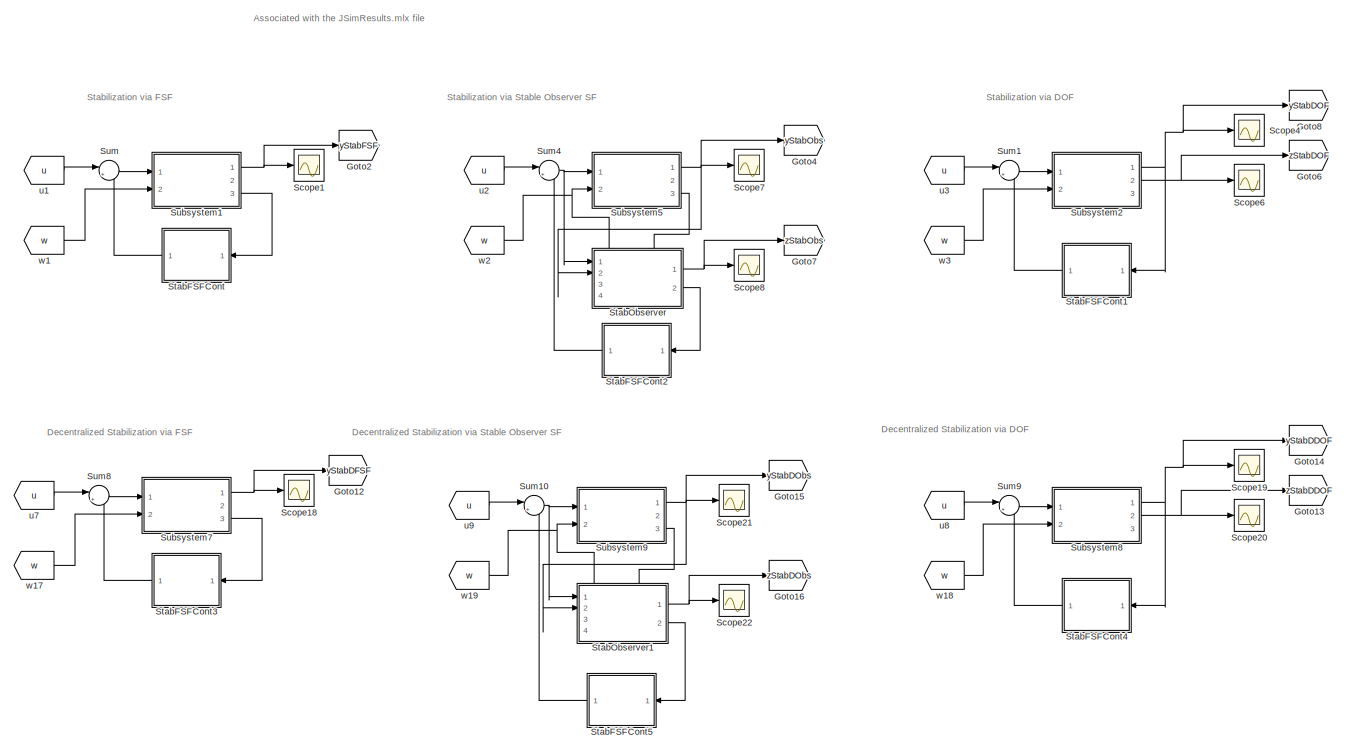
[diagram: root canvas - part 1/3, full width, top band]
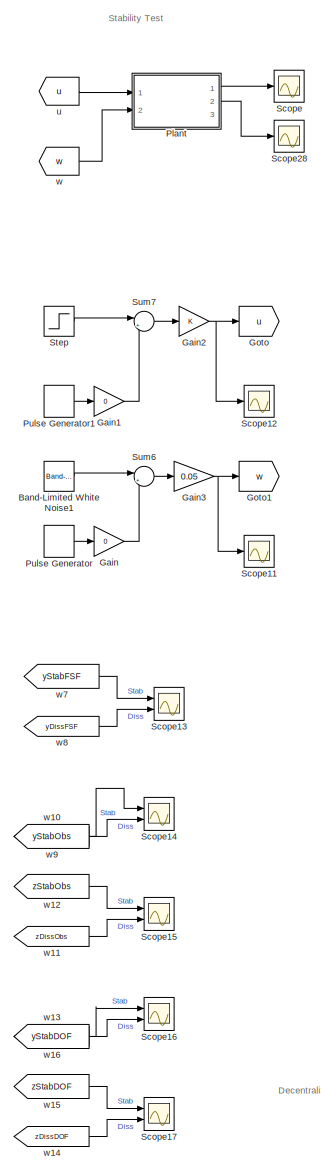
[diagram: root canvas - part 2/3, left side, full height]
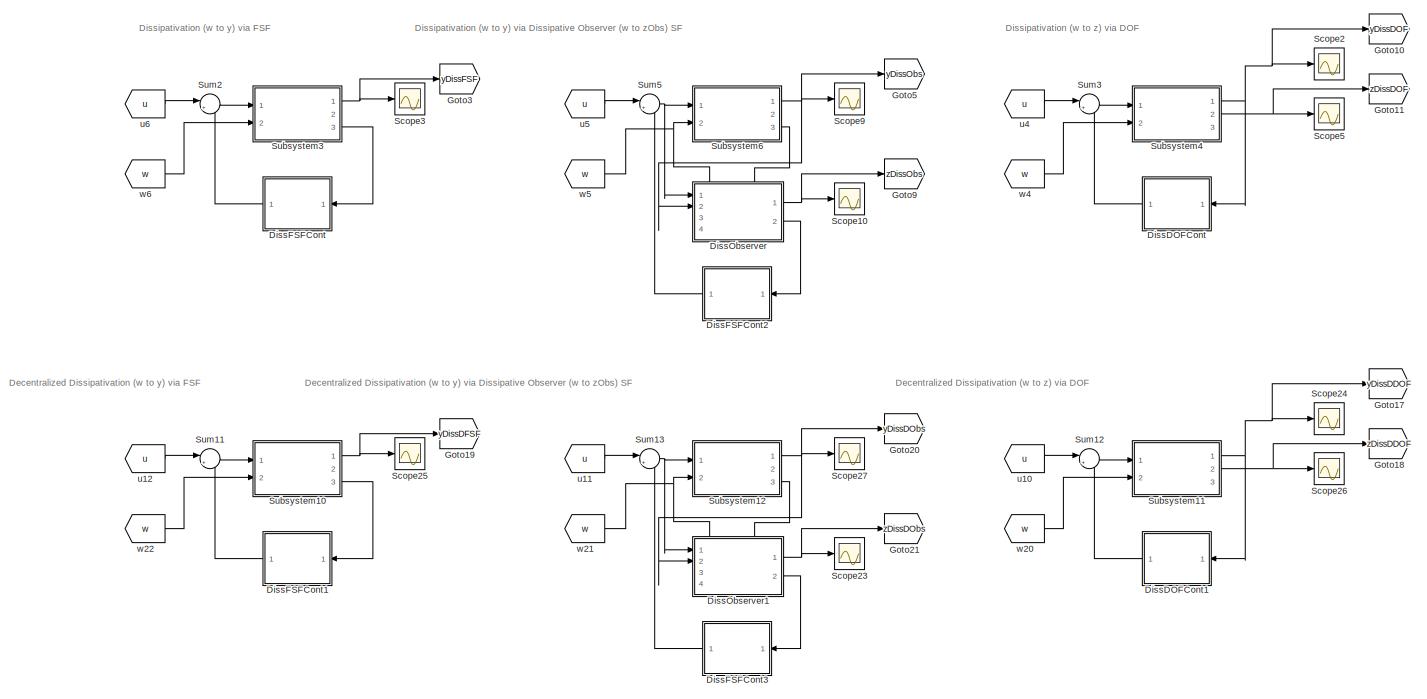
[diagram: root canvas - part 3/3, full width, bottom band]
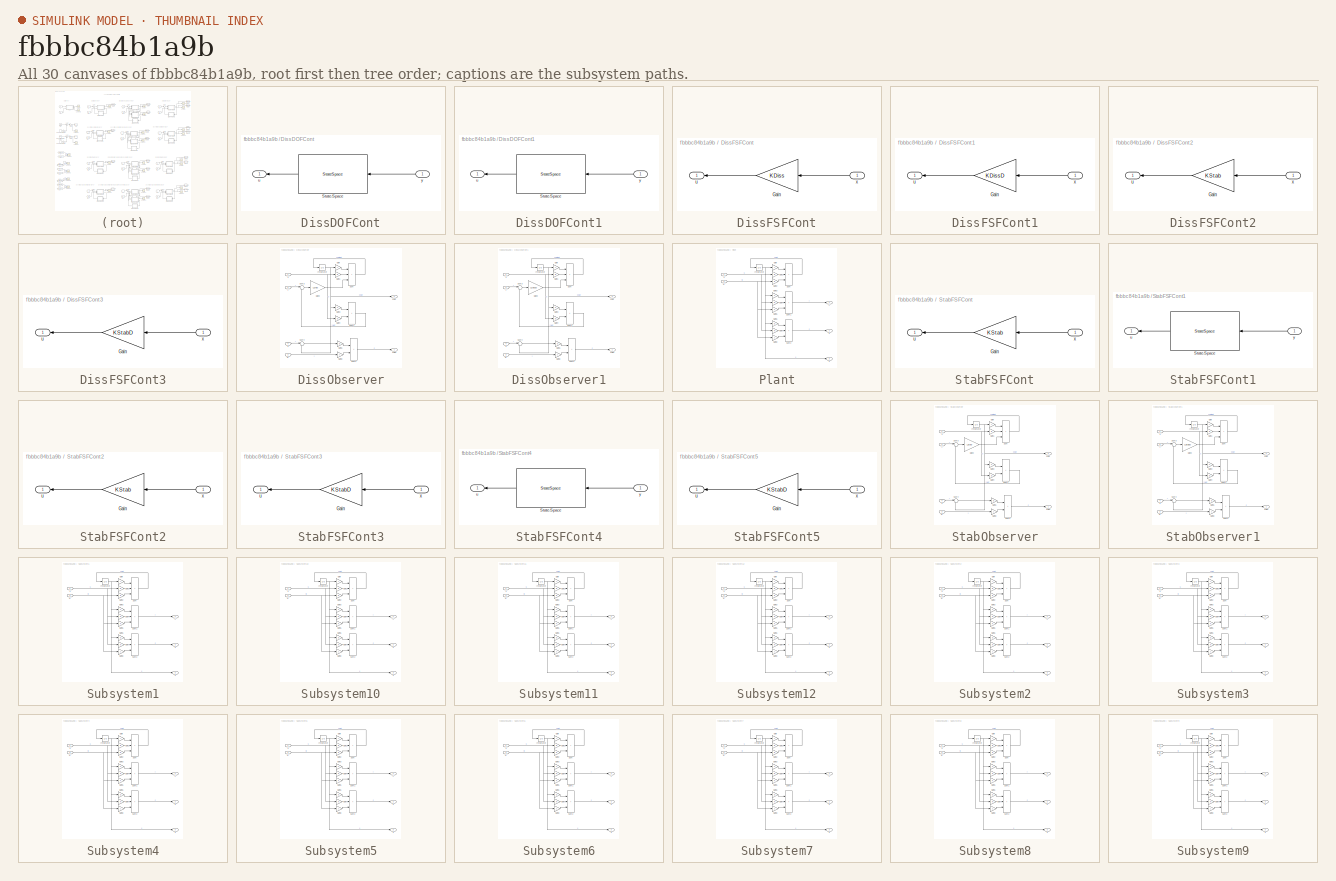
[diagram: thumbnail index - all 30 canvases of the model, root first then tree order]
MODEL slx_fbbbc84b1a9b
KIND model
CONFIG AbsTol = auto
CONFIG EnableMultiTasking = off
CONFIG FixedStep = auto
CONFIG MaxStep = auto
CONFIG MinStep = auto
CONFIG RelTol = 1e-3
CONFIG SampleTimeConstraint = Unconstrained
CONFIG SolverName = VariableStepAuto
CONFIG StartTime = 0.0
CONFIG StopTime = 25
BLOCK [Reference] Band-Limited White Noise1  REF=simulink/Sources/Band-Limited
White Noise
  Ports = [0, 1]
  SourceBlock = simulink/Sources/Band-Limited\nWhite Noise
  SourceProductBaseCode = SL
  SourceType = Band-Limited White Noise.
BLOCK [SubSystem] DissDOFCont
  Ports = [1, 1]
  RequestExecContextInheritance = off
BLOCK [StateSpace] DissDOFCont/State-Space
  A = AcDiss
  B = BcDiss
  C = CcDiss
  D = DcDiss
  InitialCondition = zeros(n,1)
  Ports = [1, 1]
BLOCK [Outport] DissDOFCont/u
BLOCK [Inport] DissDOFCont/y
BLOCK [SubSystem] DissDOFCont1
  Ports = [1, 1]
  RequestExecContextInheritance = off
BLOCK [StateSpace] DissDOFCont1/State-Space
  A = AcDissD
  B = BcDissD
  C = CcDissD
  D = DcDissD
  InitialCondition = zeros(n,1)
  Ports = [1, 1]
BLOCK [Outport] DissDOFCont1/u
BLOCK [Inport] DissDOFCont1/y
BLOCK [SubSystem] DissFSFCont
  Commented = on
  Ports = [1, 1]
  RequestExecContextInheritance = off
BLOCK [Gain] DissFSFCont/Gain
  Gain = KDiss
  Multiplication = Matrix(K*u)
BLOCK [Outport] DissFSFCont/u
BLOCK [Inport] DissFSFCont/x
BLOCK [SubSystem] DissFSFCont1
  Commented = on
  Ports = [1, 1]
  RequestExecContextInheritance = off
BLOCK [Gain] DissFSFCont1/Gain
  Gain = KDissD
  Multiplication = Matrix(K*u)
BLOCK [Outport] DissFSFCont1/u
BLOCK [Inport] DissFSFCont1/x
BLOCK [SubSystem] DissFSFCont2
  Ports = [1, 1]
  RequestExecContextInheritance = off
BLOCK [Gain] DissFSFCont2/Gain
  Gain = KStab
  Multiplication = Matrix(K*u)
BLOCK [Outport] DissFSFCont2/u
BLOCK [Inport] DissFSFCont2/x
BLOCK [SubSystem] DissFSFCont3
  Ports = [1, 1]
  RequestExecContextInheritance = off
BLOCK [Gain] DissFSFCont3/Gain
  Gain = KStabD
  Multiplication = Matrix(K*u)
BLOCK [Outport] DissFSFCont3/u
BLOCK [Inport] DissFSFCont3/x
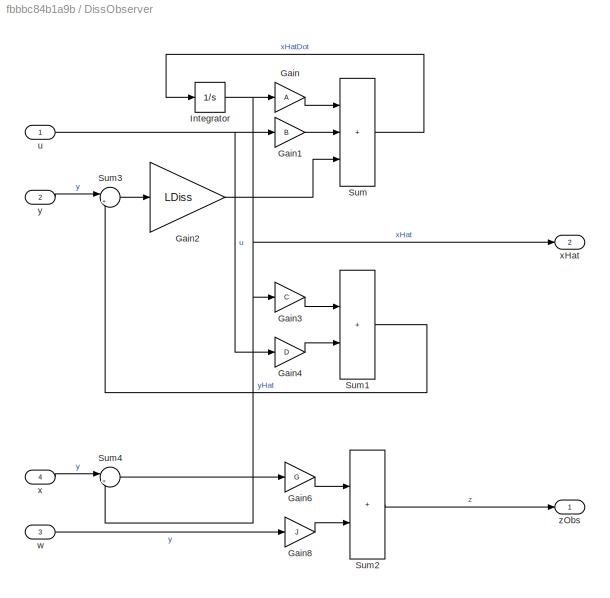
BLOCK [SubSystem] DissObserver
  PortSchema = {"entries":[{"content":{"sides":[{"content":{"connectorIds":["In1","In2"]},"type":"ConnectorPlacement.EquallySpacedRectSide","uuid":"bb89ae44-d021-4487-97ea-d884edbfbdc6"},{"content":{"connectorIds":["Out1","Out2"],"side":"RIGHT"},"type":"ConnectorPlacement.EquallySpacedRectSide","uuid":"8b439939-30ad-482f-a8e7-d460793e5232"},{"content":{"connectorIds":["In3","In4"],"side":"TOP"},"type":"Connector...<+264ch>  <repeated x4 — deduplicated; at blocks: DissObserver, DissObserver1, StabObserver, StabObserver1>
  Ports = [4, 2]
  RequestExecContextInheritance = off
BLOCK [Gain] DissObserver/Gain
  Gain = A
  Multiplication = Matrix(K*u)
BLOCK [Gain] DissObserver/Gain1
  Gain = B
  Multiplication = Matrix(K*u)
BLOCK [Gain] DissObserver/Gain2
  Gain = LDiss
  Multiplication = Matrix(K*u)
BLOCK [Gain] DissObserver/Gain3
  Gain = C
  Multiplication = Matrix(K*u)
BLOCK [Gain] DissObserver/Gain4
  Gain = D
  Multiplication = Matrix(K*u)
BLOCK [Gain] DissObserver/Gain6
  Gain = G
  Multiplication = Matrix(K*u)
BLOCK [Gain] DissObserver/Gain8
  Gain = J
  Multiplication = Matrix(K*u)
BLOCK [Integrator] DissObserver/Integrator
  InitialCondition = zeros(n,1)
  Ports = [1, 1]
BLOCK [Sum] DissObserver/Sum
  IconShape = rectangular
  Inputs = +++
  Ports = [3, 1]
BLOCK [Sum] DissObserver/Sum1
  IconShape = rectangular
  Ports = [2, 1]
BLOCK [Sum] DissObserver/Sum2
  IconShape = rectangular
  Ports = [2, 1]
BLOCK [Sum] DissObserver/Sum3
  Inputs = |+-
  Ports = [2, 1]
BLOCK [Sum] DissObserver/Sum4
  Inputs = |+-
  Ports = [2, 1]
BLOCK [Inport] DissObserver/u
BLOCK [Inport] DissObserver/w
  Port = 3
BLOCK [Inport] DissObserver/x
  Port = 4
BLOCK [Outport] DissObserver/xHat
  Port = 2
BLOCK [Inport] DissObserver/y
  Port = 2
BLOCK [Outport] DissObserver/zObs
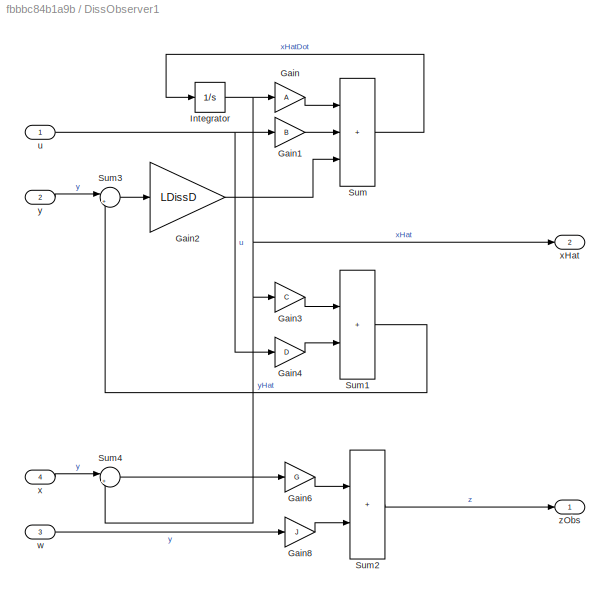
BLOCK [SubSystem] DissObserver1
  Ports = [4, 2]
  RequestExecContextInheritance = off
BLOCK [Gain] DissObserver1/Gain
  Gain = A
  Multiplication = Matrix(K*u)
BLOCK [Gain] DissObserver1/Gain1
  Gain = B
  Multiplication = Matrix(K*u)
BLOCK [Gain] DissObserver1/Gain2
  Gain = LDissD
  Multiplication = Matrix(K*u)
BLOCK [Gain] DissObserver1/Gain3
  Gain = C
  Multiplication = Matrix(K*u)
BLOCK [Gain] DissObserver1/Gain4
  Gain = D
  Multiplication = Matrix(K*u)
BLOCK [Gain] DissObserver1/Gain6
  Gain = G
  Multiplication = Matrix(K*u)
BLOCK [Gain] DissObserver1/Gain8
  Gain = J
  Multiplication = Matrix(K*u)
BLOCK [Integrator] DissObserver1/Integrator
  InitialCondition = zeros(n,1)
  Ports = [1, 1]
BLOCK [Sum] DissObserver1/Sum
  IconShape = rectangular
  Inputs = +++
  Ports = [3, 1]
BLOCK [Sum] DissObserver1/Sum1
  IconShape = rectangular
  Ports = [2, 1]
BLOCK [Sum] DissObserver1/Sum2
  IconShape = rectangular
  Ports = [2, 1]
BLOCK [Sum] DissObserver1/Sum3
  Inputs = |+-
  Ports = [2, 1]
BLOCK [Sum] DissObserver1/Sum4
  Inputs = |+-
  Ports = [2, 1]
BLOCK [Inport] DissObserver1/u
BLOCK [Inport] DissObserver1/w
  Port = 3
BLOCK [Inport] DissObserver1/x
  Port = 4
BLOCK [Outport] DissObserver1/xHat
  Port = 2
BLOCK [Inport] DissObserver1/y
  Port = 2
BLOCK [Outport] DissObserver1/zObs
BLOCK [Gain] Gain
  Gain = 0
BLOCK [Gain] Gain1
  Gain = 0
BLOCK [Gain] Gain2
BLOCK [Gain] Gain3
  Gain = 0.05
BLOCK [Goto] Goto
  GotoTag = u
BLOCK [Goto] Goto1
  GotoTag = w
BLOCK [Goto] Goto10
  GotoTag = yDissDOF
BLOCK [Goto] Goto11
  GotoTag = zDissDOF
BLOCK [Goto] Goto12
  GotoTag = yStabDFSF
BLOCK [Goto] Goto13
  GotoTag = zStabDDOF
BLOCK [Goto] Goto14
  GotoTag = yStabDDOF
BLOCK [Goto] Goto15
  GotoTag = yStabDObs
BLOCK [Goto] Goto16
  GotoTag = zStabDObs
BLOCK [Goto] Goto17
  GotoTag = yDissDDOF
BLOCK [Goto] Goto18
  GotoTag = zDissDDOF
BLOCK [Goto] Goto19
  Commented = on
  GotoTag = yDissDFSF
BLOCK [Goto] Goto2
  GotoTag = yStabFSF
BLOCK [Goto] Goto20
  GotoTag = yDissDObs
BLOCK [Goto] Goto21
  GotoTag = zDissDObs
BLOCK [Goto] Goto3
  Commented = on
  GotoTag = yDissFSF
BLOCK [Goto] Goto4
  GotoTag = yStabObs
BLOCK [Goto] Goto5
  GotoTag = yDissObs
BLOCK [Goto] Goto6
  GotoTag = zStabDOF
BLOCK [Goto] Goto7
  GotoTag = zStabObs
BLOCK [Goto] Goto8
  GotoTag = yStabDOF
BLOCK [Goto] Goto9
  GotoTag = zDissObs
BLOCK [SubSystem] Plant
  Ports = [2, 3]
  RequestExecContextInheritance = off
BLOCK [Gain] Plant/Gain
  Gain = A
  Multiplication = Matrix(K*u)
BLOCK [Gain] Plant/Gain1
  Gain = B
  Multiplication = Matrix(K*u)
BLOCK [Gain] Plant/Gain2
  Gain = E
  Multiplication = Matrix(K*u)
BLOCK [Gain] Plant/Gain3
  Gain = C
  Multiplication = Matrix(K*u)
BLOCK [Gain] Plant/Gain4
  Gain = D
  Multiplication = Matrix(K*u)
BLOCK [Gain] Plant/Gain5
  Gain = F
  Multiplication = Matrix(K*u)
BLOCK [Gain] Plant/Gain6
  Gain = G
  Multiplication = Matrix(K*u)
BLOCK [Gain] Plant/Gain7
  Gain = H
  Multiplication = Matrix(K*u)
BLOCK [Gain] Plant/Gain8
  Gain = J
  Multiplication = Matrix(K*u)
BLOCK [Integrator] Plant/Integrator
  InitialCondition = 10*ones(n,1)
  Ports = [1, 1]
BLOCK [Sum] Plant/Sum
  IconShape = rectangular
  Inputs = +++
  Ports = [3, 1]
BLOCK [Sum] Plant/Sum1
  IconShape = rectangular
  Inputs = +++
  Ports = [3, 1]
BLOCK [Sum] Plant/Sum2
  IconShape = rectangular
  Inputs = +++
  Ports = [3, 1]
BLOCK [Inport] Plant/u
BLOCK [Inport] Plant/w
  Port = 2
BLOCK [Outport] Plant/x
  Port = 3
BLOCK [Outport] Plant/y
BLOCK [Outport] Plant/z
  Port = 2
BLOCK [DiscretePulseGenerator] Pulse Generator
  Period = 30
  PhaseDelay = [20;21;22;23;24]
  Ports = [0, 1]
  PulseType = Time based
  PulseWidth = 10
BLOCK [DiscretePulseGenerator] Pulse Generator1
  Amplitude = 0.5
  Period = 100
  PhaseDelay = [45;46;47;48;49]
  Ports = [0, 1]
  PulseType = Time based
  PulseWidth = 5
BLOCK [Scope] Scope
  Floating = off
  NumInputPorts = 1
  Ports = [1]
  ScopeSpecificationString = Simulink.scopes.TimeScopeBlockCfg('CurrentConfiguration', extmgr.ConfigurationSet(extmgr.Configuration('Core','General UI',true),extmgr.Configuration('Core','Source UI',true),extmgr.Configuration('Sources','WiredSimulink',true,'DataLogging',true,'DataLoggingVariableName','DataOpenLoop','DataLoggingSaveFormat','Array','SampleTime','0.001'),extmgr.Configuration('Visuals','Time Domain',true,'Serializ...<+3878ch>
BLOCK [Scope] Scope1
  Floating = off
  NumInputPorts = 1
  Ports = [1]
  ScopeSpecificationString = Simulink.scopes.TimeScopeBlockCfg('CurrentConfiguration', extmgr.ConfigurationSet(extmgr.Configuration('Core','General UI',true),extmgr.Configuration('Core','Source UI',true),extmgr.Configuration('Sources','WiredSimulink',true,'DataLoggingVariableName','DataCentStabFSF','DataLogging',true,'DataLoggingSaveFormat','Array','SampleTime','0.001'),extmgr.Configuration('Visuals','Time Domain',true,'Seria...<+1660ch>
BLOCK [Scope] Scope10
  Floating = off
  NumInputPorts = 1
  Ports = [1]
  ScopeSpecificationString = Simulink.scopes.TimeScopeBlockCfg('CurrentConfiguration', extmgr.ConfigurationSet(extmgr.Configuration('Core','General UI',true),extmgr.Configuration('Core','Source UI',true),extmgr.Configuration('Sources','WiredSimulink',true,'DataLoggingVariableName','DataCentDissObsError','DataLogging',true,'DataLoggingSaveFormat','Array','SampleTime','0.001'),extmgr.Configuration('Visuals','Time Domain',true,'...<+1586ch>
BLOCK [Scope] Scope11
  Floating = off
  NumInputPorts = 1
  Ports = [1]
  ScopeSpecificationString = Simulink.scopes.TimeScopeBlockCfg('CurrentConfiguration', extmgr.ConfigurationSet(extmgr.Configuration('Core','General UI',true),extmgr.Configuration('Core','Source UI',true),extmgr.Configuration('Sources','WiredSimulink',true,'DataLoggingVariableName','DataDisturbancew','DataLogging',true,'DataLoggingSaveFormat','Array','SampleTime','0.001'),extmgr.Configuration('Visuals','Time Domain',true,'Seri...<+1538ch>
BLOCK [Scope] Scope12
  Floating = off
  NumInputPorts = 1
  Ports = [1]
  ScopeSpecificationString = Simulink.scopes.TimeScopeBlockCfg('CurrentConfiguration', extmgr.ConfigurationSet(extmgr.Configuration('Core','General UI',true),extmgr.Configuration('Core','Source UI',true),extmgr.Configuration('Sources','WiredSimulink',true,'DataLoggingVariableName','DataInputu','DataLogging',true,'DataLoggingSaveFormat','Array','SampleTime','0.001'),extmgr.Configuration('Visuals','Time Domain',true,'Serialized...<+1496ch>
BLOCK [Scope] Scope13
  Commented = on
  Floating = off
  NumInputPorts = 2
  Ports = [2]
  ScopeSpecificationString = Simulink.scopes.TimeScopeBlockCfg('CurrentConfiguration', extmgr.ConfigurationSet(extmgr.Configuration('Core','General UI',true),extmgr.Configuration('Core','Source UI',true),extmgr.Configuration('Sources','WiredSimulink',true,'DataLoggingVariableName','ScopeData13'),extmgr.Configuration('Visuals','Time Domain',true,'SerializedDisplays',{struct('MinYLimReal','-21.88303','MaxYLimReal','20.20629','Y...<+1440ch>
BLOCK [Scope] Scope14
  Commented = on
  Floating = off
  NumInputPorts = 2
  Ports = [2]
  ScopeSpecificationString = Simulink.scopes.TimeScopeBlockCfg('CurrentConfiguration', extmgr.ConfigurationSet(extmgr.Configuration('Core','General UI',true),extmgr.Configuration('Core','Source UI',true),extmgr.Configuration('Sources','WiredSimulink',true,'DataLoggingVariableName','ScopeData14'),extmgr.Configuration('Visuals','Time Domain',true,'SerializedDisplays',{struct('MinYLimReal','-16.08106','MaxYLimReal','29.4671','YL...<+1478ch>
BLOCK [Scope] Scope15
  Commented = on
  Floating = off
  NumInputPorts = 2
  Ports = [2]
  ScopeSpecificationString = Simulink.scopes.TimeScopeBlockCfg('CurrentConfiguration', extmgr.ConfigurationSet(extmgr.Configuration('Core','General UI',true),extmgr.Configuration('Core','Source UI',true),extmgr.Configuration('Sources','WiredSimulink',true,'DataLoggingVariableName','ScopeData15'),extmgr.Configuration('Visuals','Time Domain',true,'SerializedDisplays',{struct('MinYLimReal','-42.15469','MaxYLimReal','226.94569','...<+1406ch>
BLOCK [Scope] Scope16
  Commented = on
  Floating = off
  NumInputPorts = 2
  Ports = [2]
  ScopeSpecificationString = Simulink.scopes.TimeScopeBlockCfg('CurrentConfiguration', extmgr.ConfigurationSet(extmgr.Configuration('Core','General UI',true),extmgr.Configuration('Core','Source UI',true),extmgr.Configuration('Sources','WiredSimulink',true,'DataLoggingVariableName','ScopeData16'),extmgr.Configuration('Visuals','Time Domain',true,'SerializedDisplays',{struct('MinYLimReal','-82.42502','MaxYLimReal','23.19569','Y...<+1402ch>
BLOCK [Scope] Scope17
  Commented = on
  Floating = off
  NumInputPorts = 2
  Ports = [2]
  ScopeSpecificationString = Simulink.scopes.TimeScopeBlockCfg('CurrentConfiguration', extmgr.ConfigurationSet(extmgr.Configuration('Core','General UI',true),extmgr.Configuration('Core','Source UI',true),extmgr.Configuration('Sources','WiredSimulink',true,'DataLoggingVariableName','ScopeData17'),extmgr.Configuration('Visuals','Time Domain',true,'SerializedDisplays',{struct('MinYLimReal','-43.31637','MaxYLimReal','227.07477','...<+1451ch>
BLOCK [Scope] Scope18
  Floating = off
  NumInputPorts = 1
  Ports = [1]
  ScopeSpecificationString = Simulink.scopes.TimeScopeBlockCfg('CurrentConfiguration', extmgr.ConfigurationSet(extmgr.Configuration('Core','General UI',true),extmgr.Configuration('Core','Source UI',true),extmgr.Configuration('Sources','WiredSimulink',true,'DataLoggingVariableName','DataDecentStabFSF','DataLogging',true,'DataLoggingSaveFormat','Array','SampleTime','0.001'),extmgr.Configuration('Visuals','Time Domain',true,'Ser...<+1665ch>
BLOCK [Scope] Scope19
  Floating = off
  NumInputPorts = 1
  Ports = [1]
  ScopeSpecificationString = Simulink.scopes.TimeScopeBlockCfg('CurrentConfiguration', extmgr.ConfigurationSet(extmgr.Configuration('Core','General UI',true),extmgr.Configuration('Core','Source UI',true),extmgr.Configuration('Sources','WiredSimulink',true,'DataLoggingVariableName','DataDecentStabDOF','DataLogging',true,'DataLoggingSaveFormat','Array','SampleTime','0.001'),extmgr.Configuration('Visuals','Time Domain',true,'Ser...<+1555ch>
BLOCK [Scope] Scope2
  Floating = off
  NumInputPorts = 1
  Ports = [1]
  ScopeSpecificationString = Simulink.scopes.TimeScopeBlockCfg('CurrentConfiguration', extmgr.ConfigurationSet(extmgr.Configuration('Core','General UI',true),extmgr.Configuration('Core','Source UI',true),extmgr.Configuration('Sources','WiredSimulink',true,'DataLoggingVariableName','DataCentDissDOF','DataLogging',true,'DataLoggingSaveFormat','Array','SampleTime','0.001'),extmgr.Configuration('Visuals','Time Domain',true,'Seria...<+1553ch>
BLOCK [Scope] Scope20
  Floating = off
  NumInputPorts = 1
  Ports = [1]
  ScopeSpecificationString = Simulink.scopes.TimeScopeBlockCfg('CurrentConfiguration', extmgr.ConfigurationSet(extmgr.Configuration('Core','General UI',true),extmgr.Configuration('Core','Source UI',true),extmgr.Configuration('Sources','WiredSimulink',true,'DataLoggingVariableName','DataDecentStabDOFPerf','DataLogging',true,'DataLoggingSaveFormat','Array','SampleTime','0.001'),extmgr.Configuration('Visuals','Time Domain',true,...<+1586ch>
BLOCK [Scope] Scope21
  Floating = off
  NumInputPorts = 1
  Ports = [1]
  ScopeSpecificationString = Simulink.scopes.TimeScopeBlockCfg('CurrentConfiguration', extmgr.ConfigurationSet(extmgr.Configuration('Core','General UI',true),extmgr.Configuration('Core','Source UI',true),extmgr.Configuration('Sources','WiredSimulink',true,'DataLoggingVariableName','DataDecentStabObs','DataLogging',true,'DataLoggingSaveFormat','Array','SampleTime','0.001'),extmgr.Configuration('Visuals','Time Domain',true,'Ser...<+1555ch>
BLOCK [Scope] Scope22
  Floating = off
  NumInputPorts = 1
  Ports = [1]
  ScopeSpecificationString = Simulink.scopes.TimeScopeBlockCfg('CurrentConfiguration', extmgr.ConfigurationSet(extmgr.Configuration('Core','General UI',true),extmgr.Configuration('Core','Source UI',true),extmgr.Configuration('Sources','WiredSimulink',true,'DataLoggingVariableName','DataDecentStabObsError','DataLogging',true,'DataLoggingSaveFormat','Array','SampleTime','0.001'),extmgr.Configuration('Visuals','Time Domain',true...<+1594ch>
BLOCK [Scope] Scope23
  Floating = off
  NumInputPorts = 1
  Ports = [1]
  ScopeSpecificationString = Simulink.scopes.TimeScopeBlockCfg('CurrentConfiguration', extmgr.ConfigurationSet(extmgr.Configuration('Core','General UI',true),extmgr.Configuration('Core','Source UI',true),extmgr.Configuration('Sources','WiredSimulink',true,'DataLoggingVariableName','DataDecentDissObsError','DataLogging',true,'DataLoggingSaveFormat','Array','SampleTime','0.001'),extmgr.Configuration('Visuals','Time Domain',true...<+1598ch>
BLOCK [Scope] Scope24
  Floating = off
  NumInputPorts = 1
  Ports = [1]
  ScopeSpecificationString = Simulink.scopes.TimeScopeBlockCfg('CurrentConfiguration', extmgr.ConfigurationSet(extmgr.Configuration('Core','General UI',true),extmgr.Configuration('Core','Source UI',true),extmgr.Configuration('Sources','WiredSimulink',true,'DataLoggingVariableName','DataDecentDissDOF','DataLogging',true,'DataLoggingSaveFormat','Array','SampleTime','0.001'),extmgr.Configuration('Visuals','Time Domain',true,'Ser...<+1588ch>
BLOCK [Scope] Scope25
  Commented = on
  Floating = off
  NumInputPorts = 1
  Ports = [1]
  ScopeSpecificationString = Simulink.scopes.TimeScopeBlockCfg('CurrentConfiguration', extmgr.ConfigurationSet(extmgr.Configuration('Core','General UI',true),extmgr.Configuration('Core','Source UI',true),extmgr.Configuration('Sources','WiredSimulink',true,'DataLoggingVariableName','DataDecentDissFSF','DataLogging',true,'DataLoggingSaveFormat','Array'),extmgr.Configuration('Visuals','Time Domain',true,'SerializedDisplays',{str...<+1559ch>
BLOCK [Scope] Scope26
  Floating = off
  NumInputPorts = 1
  Ports = [1]
  ScopeSpecificationString = Simulink.scopes.TimeScopeBlockCfg('CurrentConfiguration', extmgr.ConfigurationSet(extmgr.Configuration('Core','General UI',true),extmgr.Configuration('Core','Source UI',true),extmgr.Configuration('Sources','WiredSimulink',true,'DataLoggingVariableName','DataDecentDissDOFPerf','DataLogging',true,'DataLoggingSaveFormat','Array','SampleTime','0.001'),extmgr.Configuration('Visuals','Time Domain',true,...<+1588ch>
BLOCK [Scope] Scope27
  Floating = off
  NumInputPorts = 1
  Ports = [1]
  ScopeSpecificationString = Simulink.scopes.TimeScopeBlockCfg('CurrentConfiguration', extmgr.ConfigurationSet(extmgr.Configuration('Core','General UI',true),extmgr.Configuration('Core','Source UI',true),extmgr.Configuration('Sources','WiredSimulink',true,'DataLoggingVariableName','DataDecentDissObs','DataLogging',true,'DataLoggingSaveFormat','Array','SampleTime','0.001'),extmgr.Configuration('Visuals','Time Domain',true,'Ser...<+1578ch>
BLOCK [Scope] Scope28
  Floating = off
  NumInputPorts = 1
  Ports = [1]
  ScopeSpecificationString = Simulink.scopes.TimeScopeBlockCfg('CurrentConfiguration', extmgr.ConfigurationSet(extmgr.Configuration('Core','General UI',true),extmgr.Configuration('Core','Source UI',true),extmgr.Configuration('Sources','WiredSimulink',true,'DataLogging',true,'DataLoggingVariableName','DataPerformancez','DataLoggingSaveFormat','Array','SampleTime','0.001'),extmgr.Configuration('Visuals','Time Domain',true,'Seri...<+2702ch>
BLOCK [Scope] Scope3
  Commented = on
  Floating = off
  NumInputPorts = 1
  Ports = [1]
  ScopeSpecificationString = Simulink.scopes.TimeScopeBlockCfg('CurrentConfiguration', extmgr.ConfigurationSet(extmgr.Configuration('Core','General UI',true),extmgr.Configuration('Core','Source UI',true),extmgr.Configuration('Sources','WiredSimulink',true,'DataLoggingVariableName','DataCentDissFSF','DataLogging',true,'DataLoggingSaveFormat','Array'),extmgr.Configuration('Visuals','Time Domain',true,'SerializedDisplays',{struc...<+1552ch>
BLOCK [Scope] Scope4
  Floating = off
  NumInputPorts = 1
  Ports = [1]
  ScopeSpecificationString = Simulink.scopes.TimeScopeBlockCfg('CurrentConfiguration', extmgr.ConfigurationSet(extmgr.Configuration('Core','General UI',true),extmgr.Configuration('Core','Source UI',true),extmgr.Configuration('Sources','WiredSimulink',true,'DataLoggingVariableName','DataCentStabDOF','DataLogging',true,'DataLoggingSaveFormat','Array','SampleTime','0.001'),extmgr.Configuration('Visuals','Time Domain',true,'Seria...<+1580ch>
BLOCK [Scope] Scope5
  Floating = off
  NumInputPorts = 1
  Ports = [1]
  ScopeSpecificationString = Simulink.scopes.TimeScopeBlockCfg('CurrentConfiguration', extmgr.ConfigurationSet(extmgr.Configuration('Core','General UI',true),extmgr.Configuration('Core','Source UI',true),extmgr.Configuration('Sources','WiredSimulink',true,'DataLoggingVariableName','DataCentDissDOFPerf','DataLogging',true,'DataLoggingSaveFormat','Array','SampleTime','0.001'),extmgr.Configuration('Visuals','Time Domain',true,'S...<+1566ch>
BLOCK [Scope] Scope6
  Floating = off
  NumInputPorts = 1
  Ports = [1]
  ScopeSpecificationString = Simulink.scopes.TimeScopeBlockCfg('CurrentConfiguration', extmgr.ConfigurationSet(extmgr.Configuration('Core','General UI',true),extmgr.Configuration('Core','Source UI',true),extmgr.Configuration('Sources','WiredSimulink',true,'DataLoggingVariableName','DataCentStabDOFPerf','DataLogging',true,'DataLoggingSaveFormat','Array','SampleTime','0.001'),extmgr.Configuration('Visuals','Time Domain',true,'S...<+1584ch>
BLOCK [Scope] Scope7
  Floating = off
  NumInputPorts = 1
  Ports = [1]
  ScopeSpecificationString = Simulink.scopes.TimeScopeBlockCfg('CurrentConfiguration', extmgr.ConfigurationSet(extmgr.Configuration('Core','General UI',true),extmgr.Configuration('Core','Source UI',true),extmgr.Configuration('Sources','WiredSimulink',true,'DataLoggingVariableName','DataCentStabObs','DataLogging',true,'DataLoggingSaveFormat','Array','SampleTime','0.001'),extmgr.Configuration('Visuals','Time Domain',true,'Seria...<+1553ch>
BLOCK [Scope] Scope8
  Floating = off
  NumInputPorts = 1
  Ports = [1]
  ScopeSpecificationString = Simulink.scopes.TimeScopeBlockCfg('CurrentConfiguration', extmgr.ConfigurationSet(extmgr.Configuration('Core','General UI',true),extmgr.Configuration('Core','Source UI',true),extmgr.Configuration('Sources','WiredSimulink',true,'DataLoggingVariableName','DataCentStabObsError','DataLogging',true,'DataLoggingSaveFormat','Array','SampleTime','0.001'),extmgr.Configuration('Visuals','Time Domain',true,'...<+1587ch>
BLOCK [Scope] Scope9
  Floating = off
  NumInputPorts = 1
  Ports = [1]
  ScopeSpecificationString = Simulink.scopes.TimeScopeBlockCfg('CurrentConfiguration', extmgr.ConfigurationSet(extmgr.Configuration('Core','General UI',true),extmgr.Configuration('Core','Source UI',true),extmgr.Configuration('Sources','WiredSimulink',true,'DataLoggingVariableName','DataCentDissObs','DataLogging',true,'DataLoggingSaveFormat','Array','SampleTime','0.001'),extmgr.Configuration('Visuals','Time Domain',true,'Seria...<+1572ch>
BLOCK [SubSystem] StabFSFCont
  Ports = [1, 1]
  RequestExecContextInheritance = off
BLOCK [Gain] StabFSFCont/Gain
  Gain = KStab
  Multiplication = Matrix(K*u)
BLOCK [Outport] StabFSFCont/u
BLOCK [Inport] StabFSFCont/x
BLOCK [SubSystem] StabFSFCont1
  Ports = [1, 1]
  RequestExecContextInheritance = off
BLOCK [StateSpace] StabFSFCont1/State-Space
  A = AcStab
  B = BcStab
  C = CcStab
  D = DcStab
  InitialCondition = zeros(n,1)
  Ports = [1, 1]
BLOCK [Outport] StabFSFCont1/u
BLOCK [Inport] StabFSFCont1/y
BLOCK [SubSystem] StabFSFCont2
  Ports = [1, 1]
  RequestExecContextInheritance = off
BLOCK [Gain] StabFSFCont2/Gain
  Gain = KStab
  Multiplication = Matrix(K*u)
BLOCK [Outport] StabFSFCont2/u
BLOCK [Inport] StabFSFCont2/x
BLOCK [SubSystem] StabFSFCont3
  Ports = [1, 1]
  RequestExecContextInheritance = off
BLOCK [Gain] StabFSFCont3/Gain
  Gain = KStabD
  Multiplication = Matrix(K*u)
BLOCK [Outport] StabFSFCont3/u
BLOCK [Inport] StabFSFCont3/x
BLOCK [SubSystem] StabFSFCont4
  Ports = [1, 1]
  RequestExecContextInheritance = off
BLOCK [StateSpace] StabFSFCont4/State-Space
  A = AcStabD
  B = BcStabD
  C = CcStabD
  D = DcStabD
  InitialCondition = zeros(n,1)
  Ports = [1, 1]
BLOCK [Outport] StabFSFCont4/u
BLOCK [Inport] StabFSFCont4/y
BLOCK [SubSystem] StabFSFCont5
  Ports = [1, 1]
  RequestExecContextInheritance = off
BLOCK [Gain] StabFSFCont5/Gain
  Gain = KStabD
  Multiplication = Matrix(K*u)
BLOCK [Outport] StabFSFCont5/u
BLOCK [Inport] StabFSFCont5/x
BLOCK [SubSystem] StabObserver
  Ports = [4, 2]
  RequestExecContextInheritance = off
BLOCK [Gain] StabObserver/Gain
  Gain = A
  Multiplication = Matrix(K*u)
BLOCK [Gain] StabObserver/Gain1
  Gain = B
  Multiplication = Matrix(K*u)
BLOCK [Gain] StabObserver/Gain2
  Gain = LStab
  Multiplication = Matrix(K*u)
BLOCK [Gain] StabObserver/Gain3
  Gain = C
  Multiplication = Matrix(K*u)
BLOCK [Gain] StabObserver/Gain4
  Gain = D
  Multiplication = Matrix(K*u)
BLOCK [Gain] StabObserver/Gain6
  Gain = G
  Multiplication = Matrix(K*u)
BLOCK [Gain] StabObserver/Gain8
  Gain = J
  Multiplication = Matrix(K*u)
BLOCK [Integrator] StabObserver/Integrator
  InitialCondition = zeros(n,1)
  Ports = [1, 1]
BLOCK [Sum] StabObserver/Sum
  IconShape = rectangular
  Inputs = +++
  Ports = [3, 1]
BLOCK [Sum] StabObserver/Sum1
  IconShape = rectangular
  Ports = [2, 1]
BLOCK [Sum] StabObserver/Sum2
  IconShape = rectangular
  Ports = [2, 1]
BLOCK [Sum] StabObserver/Sum3
  Inputs = |+-
  Ports = [2, 1]
BLOCK [Sum] StabObserver/Sum4
  Inputs = |+-
  Ports = [2, 1]
BLOCK [Inport] StabObserver/u
BLOCK [Inport] StabObserver/w
  Port = 3
BLOCK [Inport] StabObserver/x
  Port = 4
BLOCK [Outport] StabObserver/xHat
  Port = 2
BLOCK [Inport] StabObserver/y
  Port = 2
BLOCK [Outport] StabObserver/zObs
BLOCK [SubSystem] StabObserver1
  Ports = [4, 2]
  RequestExecContextInheritance = off
BLOCK [Gain] StabObserver1/Gain
  Gain = A
  Multiplication = Matrix(K*u)
BLOCK [Gain] StabObserver1/Gain1
  Gain = B
  Multiplication = Matrix(K*u)
BLOCK [Gain] StabObserver1/Gain2
  Gain = LStabD
  Multiplication = Matrix(K*u)
BLOCK [Gain] StabObserver1/Gain3
  Gain = C
  Multiplication = Matrix(K*u)
BLOCK [Gain] StabObserver1/Gain4
  Gain = D
  Multiplication = Matrix(K*u)
BLOCK [Gain] StabObserver1/Gain6
  Gain = G
  Multiplication = Matrix(K*u)
BLOCK [Gain] StabObserver1/Gain8
  Gain = J
  Multiplication = Matrix(K*u)
BLOCK [Integrator] StabObserver1/Integrator
  InitialCondition = zeros(n,1)
  Ports = [1, 1]
BLOCK [Sum] StabObserver1/Sum
  IconShape = rectangular
  Inputs = +++
  Ports = [3, 1]
BLOCK [Sum] StabObserver1/Sum1
  IconShape = rectangular
  Ports = [2, 1]
BLOCK [Sum] StabObserver1/Sum2
  IconShape = rectangular
  Ports = [2, 1]
BLOCK [Sum] StabObserver1/Sum3
  Inputs = |+-
  Ports = [2, 1]
BLOCK [Sum] StabObserver1/Sum4
  Inputs = |+-
  Ports = [2, 1]
BLOCK [Inport] StabObserver1/u
BLOCK [Inport] StabObserver1/w
  Port = 3
BLOCK [Inport] StabObserver1/x
  Port = 4
BLOCK [Outport] StabObserver1/xHat
  Port = 2
BLOCK [Inport] StabObserver1/y
  Port = 2
BLOCK [Outport] StabObserver1/zObs
BLOCK [Step] Step
  After = 0
  Before = 1
  SampleTime = 0
  Time = [5;6;7;8;9]
BLOCK [SubSystem] Subsystem1
  Ports = [2, 3]
  RequestExecContextInheritance = off
BLOCK [Gain] Subsystem1/Gain
  Gain = A
  Multiplication = Matrix(K*u)
BLOCK [Gain] Subsystem1/Gain1
  Gain = B
  Multiplication = Matrix(K*u)
BLOCK [Gain] Subsystem1/Gain2
  Gain = E
  Multiplication = Matrix(K*u)
BLOCK [Gain] Subsystem1/Gain3
  Gain = C
  Multiplication = Matrix(K*u)
BLOCK [Gain] Subsystem1/Gain4
  Gain = D
  Multiplication = Matrix(K*u)
BLOCK [Gain] Subsystem1/Gain5
  Gain = F
  Multiplication = Matrix(K*u)
BLOCK [Gain] Subsystem1/Gain6
  Gain = G
  Multiplication = Matrix(K*u)
BLOCK [Gain] Subsystem1/Gain7
  Gain = H
  Multiplication = Matrix(K*u)
BLOCK [Gain] Subsystem1/Gain8
  Gain = J
  Multiplication = Matrix(K*u)
BLOCK [Integrator] Subsystem1/Integrator
  InitialCondition = 10*ones(n,1)
  Ports = [1, 1]
BLOCK [Sum] Subsystem1/Sum
  IconShape = rectangular
  Inputs = +++
  Ports = [3, 1]
BLOCK [Sum] Subsystem1/Sum1
  IconShape = rectangular
  Inputs = +++
  Ports = [3, 1]
BLOCK [Sum] Subsystem1/Sum2
  IconShape = rectangular
  Inputs = +++
  Ports = [3, 1]
BLOCK [Inport] Subsystem1/u
BLOCK [Inport] Subsystem1/w
  Port = 2
BLOCK [Outport] Subsystem1/x
  Port = 3
BLOCK [Outport] Subsystem1/y
BLOCK [Outport] Subsystem1/z
  Port = 2
BLOCK [SubSystem] Subsystem10
  Commented = on
  Ports = [2, 3]
  RequestExecContextInheritance = off
BLOCK [Gain] Subsystem10/Gain
  Gain = A
  Multiplication = Matrix(K*u)
BLOCK [Gain] Subsystem10/Gain1
  Gain = B
  Multiplication = Matrix(K*u)
BLOCK [Gain] Subsystem10/Gain2
  Gain = E
  Multiplication = Matrix(K*u)
BLOCK [Gain] Subsystem10/Gain3
  Gain = C
  Multiplication = Matrix(K*u)
BLOCK [Gain] Subsystem10/Gain4
  Gain = D
  Multiplication = Matrix(K*u)
BLOCK [Gain] Subsystem10/Gain5
  Gain = F
  Multiplication = Matrix(K*u)
BLOCK [Gain] Subsystem10/Gain6
  Gain = G
  Multiplication = Matrix(K*u)
BLOCK [Gain] Subsystem10/Gain7
  Gain = H
  Multiplication = Matrix(K*u)
BLOCK [Gain] Subsystem10/Gain8
  Gain = J
  Multiplication = Matrix(K*u)
BLOCK [Integrator] Subsystem10/Integrator
  InitialCondition = 10*ones(n,1)
  Ports = [1, 1]
BLOCK [Sum] Subsystem10/Sum
  IconShape = rectangular
  Inputs = +++
  Ports = [3, 1]
BLOCK [Sum] Subsystem10/Sum1
  IconShape = rectangular
  Inputs = +++
  Ports = [3, 1]
BLOCK [Sum] Subsystem10/Sum2
  IconShape = rectangular
  Inputs = +++
  Ports = [3, 1]
BLOCK [Inport] Subsystem10/u
BLOCK [Inport] Subsystem10/w
  Port = 2
BLOCK [Outport] Subsystem10/x
  Port = 3
BLOCK [Outport] Subsystem10/y
BLOCK [Outport] Subsystem10/z
  Port = 2
BLOCK [SubSystem] Subsystem11
  Ports = [2, 3]
  RequestExecContextInheritance = off
BLOCK [Gain] Subsystem11/Gain
  Gain = A
  Multiplication = Matrix(K*u)
BLOCK [Gain] Subsystem11/Gain1
  Gain = B
  Multiplication = Matrix(K*u)
BLOCK [Gain] Subsystem11/Gain2
  Gain = E
  Multiplication = Matrix(K*u)
BLOCK [Gain] Subsystem11/Gain3
  Gain = C
  Multiplication = Matrix(K*u)
BLOCK [Gain] Subsystem11/Gain4
  Gain = D
  Multiplication = Matrix(K*u)
BLOCK [Gain] Subsystem11/Gain5
  Gain = F
  Multiplication = Matrix(K*u)
BLOCK [Gain] Subsystem11/Gain6
  Gain = G
  Multiplication = Matrix(K*u)
BLOCK [Gain] Subsystem11/Gain7
  Gain = H
  Multiplication = Matrix(K*u)
BLOCK [Gain] Subsystem11/Gain8
  Gain = J
  Multiplication = Matrix(K*u)
BLOCK [Integrator] Subsystem11/Integrator
  InitialCondition = 10*ones(n,1)
  Ports = [1, 1]
BLOCK [Sum] Subsystem11/Sum
  IconShape = rectangular
  Inputs = +++
  Ports = [3, 1]
BLOCK [Sum] Subsystem11/Sum1
  IconShape = rectangular
  Inputs = +++
  Ports = [3, 1]
BLOCK [Sum] Subsystem11/Sum2
  IconShape = rectangular
  Inputs = +++
  Ports = [3, 1]
BLOCK [Inport] Subsystem11/u
BLOCK [Inport] Subsystem11/w
  Port = 2
BLOCK [Outport] Subsystem11/x
  Port = 3
BLOCK [Outport] Subsystem11/y
BLOCK [Outport] Subsystem11/z
  Port = 2
BLOCK [SubSystem] Subsystem12
  Ports = [2, 3]
  RequestExecContextInheritance = off
BLOCK [Gain] Subsystem12/Gain
  Gain = A
  Multiplication = Matrix(K*u)
BLOCK [Gain] Subsystem12/Gain1
  Gain = B
  Multiplication = Matrix(K*u)
BLOCK [Gain] Subsystem12/Gain2
  Gain = E
  Multiplication = Matrix(K*u)
BLOCK [Gain] Subsystem12/Gain3
  Gain = C
  Multiplication = Matrix(K*u)
BLOCK [Gain] Subsystem12/Gain4
  Gain = D
  Multiplication = Matrix(K*u)
BLOCK [Gain] Subsystem12/Gain5
  Gain = F
  Multiplication = Matrix(K*u)
BLOCK [Gain] Subsystem12/Gain6
  Gain = G
  Multiplication = Matrix(K*u)
BLOCK [Gain] Subsystem12/Gain7
  Gain = H
  Multiplication = Matrix(K*u)
BLOCK [Gain] Subsystem12/Gain8
  Gain = J
  Multiplication = Matrix(K*u)
BLOCK [Integrator] Subsystem12/Integrator
  InitialCondition = 10*ones(n,1)
  Ports = [1, 1]
BLOCK [Sum] Subsystem12/Sum
  IconShape = rectangular
  Inputs = +++
  Ports = [3, 1]
BLOCK [Sum] Subsystem12/Sum1
  IconShape = rectangular
  Inputs = +++
  Ports = [3, 1]
BLOCK [Sum] Subsystem12/Sum2
  IconShape = rectangular
  Inputs = +++
  Ports = [3, 1]
BLOCK [Inport] Subsystem12/u
BLOCK [Inport] Subsystem12/w
  Port = 2
BLOCK [Outport] Subsystem12/x
  Port = 3
BLOCK [Outport] Subsystem12/y
BLOCK [Outport] Subsystem12/z
  Port = 2
BLOCK [SubSystem] Subsystem2
  Ports = [2, 3]
  RequestExecContextInheritance = off
BLOCK [Gain] Subsystem2/Gain
  Gain = A
  Multiplication = Matrix(K*u)
BLOCK [Gain] Subsystem2/Gain1
  Gain = B
  Multiplication = Matrix(K*u)
BLOCK [Gain] Subsystem2/Gain2
  Gain = E
  Multiplication = Matrix(K*u)
BLOCK [Gain] Subsystem2/Gain3
  Gain = C
  Multiplication = Matrix(K*u)
BLOCK [Gain] Subsystem2/Gain4
  Gain = D
  Multiplication = Matrix(K*u)
BLOCK [Gain] Subsystem2/Gain5
  Gain = F
  Multiplication = Matrix(K*u)
BLOCK [Gain] Subsystem2/Gain6
  Gain = G
  Multiplication = Matrix(K*u)
BLOCK [Gain] Subsystem2/Gain7
  Gain = H
  Multiplication = Matrix(K*u)
BLOCK [Gain] Subsystem2/Gain8
  Gain = J
  Multiplication = Matrix(K*u)
BLOCK [Integrator] Subsystem2/Integrator
  InitialCondition = 10*ones(n,1)
  Ports = [1, 1]
BLOCK [Sum] Subsystem2/Sum
  IconShape = rectangular
  Inputs = +++
  Ports = [3, 1]
BLOCK [Sum] Subsystem2/Sum1
  IconShape = rectangular
  Inputs = +++
  Ports = [3, 1]
BLOCK [Sum] Subsystem2/Sum2
  IconShape = rectangular
  Inputs = +++
  Ports = [3, 1]
BLOCK [Inport] Subsystem2/u
BLOCK [Inport] Subsystem2/w
  Port = 2
BLOCK [Outport] Subsystem2/x
  Port = 3
BLOCK [Outport] Subsystem2/y
BLOCK [Outport] Subsystem2/z
  Port = 2
BLOCK [SubSystem] Subsystem3
  Commented = on
  Ports = [2, 3]
  RequestExecContextInheritance = off
BLOCK [Gain] Subsystem3/Gain
  Gain = A
  Multiplication = Matrix(K*u)
BLOCK [Gain] Subsystem3/Gain1
  Gain = B
  Multiplication = Matrix(K*u)
BLOCK [Gain] Subsystem3/Gain2
  Gain = E
  Multiplication = Matrix(K*u)
BLOCK [Gain] Subsystem3/Gain3
  Gain = C
  Multiplication = Matrix(K*u)
BLOCK [Gain] Subsystem3/Gain4
  Gain = D
  Multiplication = Matrix(K*u)
BLOCK [Gain] Subsystem3/Gain5
  Gain = F
  Multiplication = Matrix(K*u)
BLOCK [Gain] Subsystem3/Gain6
  Gain = G
  Multiplication = Matrix(K*u)
BLOCK [Gain] Subsystem3/Gain7
  Gain = H
  Multiplication = Matrix(K*u)
BLOCK [Gain] Subsystem3/Gain8
  Gain = J
  Multiplication = Matrix(K*u)
BLOCK [Integrator] Subsystem3/Integrator
  InitialCondition = 10*ones(n,1)
  Ports = [1, 1]
BLOCK [Sum] Subsystem3/Sum
  IconShape = rectangular
  Inputs = +++
  Ports = [3, 1]
BLOCK [Sum] Subsystem3/Sum1
  IconShape = rectangular
  Inputs = +++
  Ports = [3, 1]
BLOCK [Sum] Subsystem3/Sum2
  IconShape = rectangular
  Inputs = +++
  Ports = [3, 1]
BLOCK [Inport] Subsystem3/u
BLOCK [Inport] Subsystem3/w
  Port = 2
BLOCK [Outport] Subsystem3/x
  Port = 3
BLOCK [Outport] Subsystem3/y
BLOCK [Outport] Subsystem3/z
  Port = 2
BLOCK [SubSystem] Subsystem4
  Ports = [2, 3]
  RequestExecContextInheritance = off
BLOCK [Gain] Subsystem4/Gain
  Gain = A
  Multiplication = Matrix(K*u)
BLOCK [Gain] Subsystem4/Gain1
  Gain = B
  Multiplication = Matrix(K*u)
BLOCK [Gain] Subsystem4/Gain2
  Gain = E
  Multiplication = Matrix(K*u)
BLOCK [Gain] Subsystem4/Gain3
  Gain = C
  Multiplication = Matrix(K*u)
BLOCK [Gain] Subsystem4/Gain4
  Gain = D
  Multiplication = Matrix(K*u)
BLOCK [Gain] Subsystem4/Gain5
  Gain = F
  Multiplication = Matrix(K*u)
BLOCK [Gain] Subsystem4/Gain6
  Gain = G
  Multiplication = Matrix(K*u)
BLOCK [Gain] Subsystem4/Gain7
  Gain = H
  Multiplication = Matrix(K*u)
BLOCK [Gain] Subsystem4/Gain8
  Gain = J
  Multiplication = Matrix(K*u)
BLOCK [Integrator] Subsystem4/Integrator
  InitialCondition = 10*ones(n,1)
  Ports = [1, 1]
BLOCK [Sum] Subsystem4/Sum
  IconShape = rectangular
  Inputs = +++
  Ports = [3, 1]
BLOCK [Sum] Subsystem4/Sum1
  IconShape = rectangular
  Inputs = +++
  Ports = [3, 1]
BLOCK [Sum] Subsystem4/Sum2
  IconShape = rectangular
  Inputs = +++
  Ports = [3, 1]
BLOCK [Inport] Subsystem4/u
BLOCK [Inport] Subsystem4/w
  Port = 2
BLOCK [Outport] Subsystem4/x
  Port = 3
BLOCK [Outport] Subsystem4/y
BLOCK [Outport] Subsystem4/z
  Port = 2
BLOCK [SubSystem] Subsystem5
  Ports = [2, 3]
  RequestExecContextInheritance = off
BLOCK [Gain] Subsystem5/Gain
  Gain = A
  Multiplication = Matrix(K*u)
BLOCK [Gain] Subsystem5/Gain1
  Gain = B
  Multiplication = Matrix(K*u)
BLOCK [Gain] Subsystem5/Gain2
  Gain = E
  Multiplication = Matrix(K*u)
BLOCK [Gain] Subsystem5/Gain3
  Gain = C
  Multiplication = Matrix(K*u)
BLOCK [Gain] Subsystem5/Gain4
  Gain = D
  Multiplication = Matrix(K*u)
BLOCK [Gain] Subsystem5/Gain5
  Gain = F
  Multiplication = Matrix(K*u)
BLOCK [Gain] Subsystem5/Gain6
  Gain = G
  Multiplication = Matrix(K*u)
BLOCK [Gain] Subsystem5/Gain7
  Gain = H
  Multiplication = Matrix(K*u)
BLOCK [Gain] Subsystem5/Gain8
  Gain = J
  Multiplication = Matrix(K*u)
BLOCK [Integrator] Subsystem5/Integrator
  InitialCondition = 10*ones(n,1)
  Ports = [1, 1]
BLOCK [Sum] Subsystem5/Sum
  IconShape = rectangular
  Inputs = +++
  Ports = [3, 1]
BLOCK [Sum] Subsystem5/Sum1
  IconShape = rectangular
  Inputs = +++
  Ports = [3, 1]
BLOCK [Sum] Subsystem5/Sum2
  IconShape = rectangular
  Inputs = +++
  Ports = [3, 1]
BLOCK [Inport] Subsystem5/u
BLOCK [Inport] Subsystem5/w
  Port = 2
BLOCK [Outport] Subsystem5/x
  Port = 3
BLOCK [Outport] Subsystem5/y
BLOCK [Outport] Subsystem5/z
  Port = 2
BLOCK [SubSystem] Subsystem6
  Ports = [2, 3]
  RequestExecContextInheritance = off
BLOCK [Gain] Subsystem6/Gain
  Gain = A
  Multiplication = Matrix(K*u)
BLOCK [Gain] Subsystem6/Gain1
  Gain = B
  Multiplication = Matrix(K*u)
BLOCK [Gain] Subsystem6/Gain2
  Gain = E
  Multiplication = Matrix(K*u)
BLOCK [Gain] Subsystem6/Gain3
  Gain = C
  Multiplication = Matrix(K*u)
BLOCK [Gain] Subsystem6/Gain4
  Gain = D
  Multiplication = Matrix(K*u)
BLOCK [Gain] Subsystem6/Gain5
  Gain = F
  Multiplication = Matrix(K*u)
BLOCK [Gain] Subsystem6/Gain6
  Gain = G
  Multiplication = Matrix(K*u)
BLOCK [Gain] Subsystem6/Gain7
  Gain = H
  Multiplication = Matrix(K*u)
BLOCK [Gain] Subsystem6/Gain8
  Gain = J
  Multiplication = Matrix(K*u)
BLOCK [Integrator] Subsystem6/Integrator
  InitialCondition = 10*ones(n,1)
  Ports = [1, 1]
BLOCK [Sum] Subsystem6/Sum
  IconShape = rectangular
  Inputs = +++
  Ports = [3, 1]
BLOCK [Sum] Subsystem6/Sum1
  IconShape = rectangular
  Inputs = +++
  Ports = [3, 1]
BLOCK [Sum] Subsystem6/Sum2
  IconShape = rectangular
  Inputs = +++
  Ports = [3, 1]
BLOCK [Inport] Subsystem6/u
BLOCK [Inport] Subsystem6/w
  Port = 2
BLOCK [Outport] Subsystem6/x
  Port = 3
BLOCK [Outport] Subsystem6/y
BLOCK [Outport] Subsystem6/z
  Port = 2
BLOCK [SubSystem] Subsystem7
  Ports = [2, 3]
  RequestExecContextInheritance = off
BLOCK [Gain] Subsystem7/Gain
  Gain = A
  Multiplication = Matrix(K*u)
BLOCK [Gain] Subsystem7/Gain1
  Gain = B
  Multiplication = Matrix(K*u)
BLOCK [Gain] Subsystem7/Gain2
  Gain = E
  Multiplication = Matrix(K*u)
BLOCK [Gain] Subsystem7/Gain3
  Gain = C
  Multiplication = Matrix(K*u)
BLOCK [Gain] Subsystem7/Gain4
  Gain = D
  Multiplication = Matrix(K*u)
BLOCK [Gain] Subsystem7/Gain5
  Gain = F
  Multiplication = Matrix(K*u)
BLOCK [Gain] Subsystem7/Gain6
  Gain = G
  Multiplication = Matrix(K*u)
BLOCK [Gain] Subsystem7/Gain7
  Gain = H
  Multiplication = Matrix(K*u)
BLOCK [Gain] Subsystem7/Gain8
  Gain = J
  Multiplication = Matrix(K*u)
BLOCK [Integrator] Subsystem7/Integrator
  InitialCondition = 10*ones(n,1)
  Ports = [1, 1]
BLOCK [Sum] Subsystem7/Sum
  IconShape = rectangular
  Inputs = +++
  Ports = [3, 1]
BLOCK [Sum] Subsystem7/Sum1
  IconShape = rectangular
  Inputs = +++
  Ports = [3, 1]
BLOCK [Sum] Subsystem7/Sum2
  IconShape = rectangular
  Inputs = +++
  Ports = [3, 1]
BLOCK [Inport] Subsystem7/u
BLOCK [Inport] Subsystem7/w
  Port = 2
BLOCK [Outport] Subsystem7/x
  Port = 3
BLOCK [Outport] Subsystem7/y
BLOCK [Outport] Subsystem7/z
  Port = 2
BLOCK [SubSystem] Subsystem8
  Ports = [2, 3]
  RequestExecContextInheritance = off
BLOCK [Gain] Subsystem8/Gain
  Gain = A
  Multiplication = Matrix(K*u)
BLOCK [Gain] Subsystem8/Gain1
  Gain = B
  Multiplication = Matrix(K*u)
BLOCK [Gain] Subsystem8/Gain2
  Gain = E
  Multiplication = Matrix(K*u)
BLOCK [Gain] Subsystem8/Gain3
  Gain = C
  Multiplication = Matrix(K*u)
BLOCK [Gain] Subsystem8/Gain4
  Gain = D
  Multiplication = Matrix(K*u)
BLOCK [Gain] Subsystem8/Gain5
  Gain = F
  Multiplication = Matrix(K*u)
BLOCK [Gain] Subsystem8/Gain6
  Gain = G
  Multiplication = Matrix(K*u)
BLOCK [Gain] Subsystem8/Gain7
  Gain = H
  Multiplication = Matrix(K*u)
BLOCK [Gain] Subsystem8/Gain8
  Gain = J
  Multiplication = Matrix(K*u)
BLOCK [Integrator] Subsystem8/Integrator
  InitialCondition = 10*ones(n,1)
  Ports = [1, 1]
BLOCK [Sum] Subsystem8/Sum
  IconShape = rectangular
  Inputs = +++
  Ports = [3, 1]
BLOCK [Sum] Subsystem8/Sum1
  IconShape = rectangular
  Inputs = +++
  Ports = [3, 1]
BLOCK [Sum] Subsystem8/Sum2
  IconShape = rectangular
  Inputs = +++
  Ports = [3, 1]
BLOCK [Inport] Subsystem8/u
BLOCK [Inport] Subsystem8/w
  Port = 2
BLOCK [Outport] Subsystem8/x
  Port = 3
BLOCK [Outport] Subsystem8/y
BLOCK [Outport] Subsystem8/z
  Port = 2
BLOCK [SubSystem] Subsystem9
  Ports = [2, 3]
  RequestExecContextInheritance = off
BLOCK [Gain] Subsystem9/Gain
  Gain = A
  Multiplication = Matrix(K*u)
BLOCK [Gain] Subsystem9/Gain1
  Gain = B
  Multiplication = Matrix(K*u)
BLOCK [Gain] Subsystem9/Gain2
  Gain = E
  Multiplication = Matrix(K*u)
BLOCK [Gain] Subsystem9/Gain3
  Gain = C
  Multiplication = Matrix(K*u)
BLOCK [Gain] Subsystem9/Gain4
  Gain = D
  Multiplication = Matrix(K*u)
BLOCK [Gain] Subsystem9/Gain5
  Gain = F
  Multiplication = Matrix(K*u)
BLOCK [Gain] Subsystem9/Gain6
  Gain = G
  Multiplication = Matrix(K*u)
BLOCK [Gain] Subsystem9/Gain7
  Gain = H
  Multiplication = Matrix(K*u)
BLOCK [Gain] Subsystem9/Gain8
  Gain = J
  Multiplication = Matrix(K*u)
BLOCK [Integrator] Subsystem9/Integrator
  InitialCondition = 10*ones(n,1)
  Ports = [1, 1]
BLOCK [Sum] Subsystem9/Sum
  IconShape = rectangular
  Inputs = +++
  Ports = [3, 1]
BLOCK [Sum] Subsystem9/Sum1
  IconShape = rectangular
  Inputs = +++
  Ports = [3, 1]
BLOCK [Sum] Subsystem9/Sum2
  IconShape = rectangular
  Inputs = +++
  Ports = [3, 1]
BLOCK [Inport] Subsystem9/u
BLOCK [Inport] Subsystem9/w
  Port = 2
BLOCK [Outport] Subsystem9/x
  Port = 3
BLOCK [Outport] Subsystem9/y
BLOCK [Outport] Subsystem9/z
  Port = 2
BLOCK [Sum] Sum
  Inputs = |++
  Ports = [2, 1]
BLOCK [Sum] Sum1
  Inputs = |++
  Ports = [2, 1]
BLOCK [Sum] Sum10
  Inputs = |++
  Ports = [2, 1]
BLOCK [Sum] Sum11
  Commented = on
  Inputs = |++
  Ports = [2, 1]
BLOCK [Sum] Sum12
  Inputs = |++
  Ports = [2, 1]
BLOCK [Sum] Sum13
  Inputs = |++
  Ports = [2, 1]
BLOCK [Sum] Sum2
  Commented = on
  Inputs = |++
  Ports = [2, 1]
BLOCK [Sum] Sum3
  Inputs = |++
  Ports = [2, 1]
BLOCK [Sum] Sum4
  Inputs = |++
  Ports = [2, 1]
BLOCK [Sum] Sum5
  Inputs = |++
  Ports = [2, 1]
BLOCK [Sum] Sum6
  Inputs = |++
  Ports = [2, 1]
BLOCK [Sum] Sum7
  Inputs = |++
  Ports = [2, 1]
BLOCK [Sum] Sum8
  Inputs = |++
  Ports = [2, 1]
BLOCK [Sum] Sum9
  Inputs = |++
  Ports = [2, 1]
BLOCK [From] u
  GotoTag = u
BLOCK [From] u1
  GotoTag = u
BLOCK [From] u10
  GotoTag = u
BLOCK [From] u11
  GotoTag = u
BLOCK [From] u12
  Commented = on
  GotoTag = u
BLOCK [From] u2
  GotoTag = u
BLOCK [From] u3
  GotoTag = u
BLOCK [From] u4
  GotoTag = u
BLOCK [From] u5
  GotoTag = u
BLOCK [From] u6
  Commented = on
  GotoTag = u
BLOCK [From] u7
  GotoTag = u
BLOCK [From] u8
  GotoTag = u
BLOCK [From] u9
  GotoTag = u
BLOCK [From] w
  GotoTag = w
BLOCK [From] w1
  GotoTag = w
BLOCK [From] w10
  Commented = on
  GotoTag = yDissObs
BLOCK [From] w11
  Commented = on
  GotoTag = zDissObs
BLOCK [From] w12
  Commented = on
  GotoTag = zStabObs
BLOCK [From] w13
  Commented = on
  GotoTag = yDissDOF
BLOCK [From] w14
  Commented = on
  GotoTag = zDissDOF
BLOCK [From] w15
  Commented = on
  GotoTag = zStabDOF
BLOCK [From] w16
  Commented = on
  GotoTag = yStabDOF
BLOCK [From] w17
  GotoTag = w
BLOCK [From] w18
  GotoTag = w
BLOCK [From] w19
  GotoTag = w
BLOCK [From] w2
  GotoTag = w
BLOCK [From] w20
  GotoTag = w
BLOCK [From] w21
  GotoTag = w
BLOCK [From] w22
  Commented = on
  GotoTag = w
BLOCK [From] w3
  GotoTag = w
BLOCK [From] w4
  GotoTag = w
BLOCK [From] w5
  GotoTag = w
BLOCK [From] w6
  Commented = on
  GotoTag = w
BLOCK [From] w7
  Commented = on
  GotoTag = yStabFSF
BLOCK [From] w8
  Commented = on
  GotoTag = yDissFSF
BLOCK [From] w9
  Commented = on
  GotoTag = yStabObs
ANNOTATION (root): Associated with the JSimResults.mlx file
ANNOTATION (root): Decentralized Dissipativation (w to y) via Dissipative Observer (w to zObs) SF
ANNOTATION (root): Decentralized Dissipativation (w to y) via FSF
ANNOTATION (root): Decentralized Dissipativation (w to z) via DOF
ANNOTATION (root): Decentralized Stabilization via DOF
ANNOTATION (root): Decentralized Stabilization via FSF
ANNOTATION (root): Decentralized Stabilization via Stable Observer SF
ANNOTATION (root): Dissipativation (w to y) via Dissipative Observer (w to zObs) SF
ANNOTATION (root): Dissipativation (w to y) via FSF
ANNOTATION (root): Dissipativation (w to z) via DOF
ANNOTATION (root): Stability Test
ANNOTATION (root): Stabilization via DOF
ANNOTATION (root): Stabilization via FSF
ANNOTATION (root): Stabilization via Stable Observer SF
LINE Band-Limited White Noise1:1 -> Sum6:1
LINE DissDOFCont/State-Space:1 -> DissDOFCont/u:1
LINE DissDOFCont/y:1 -> DissDOFCont/State-Space:1
LINE DissDOFCont1/State-Space:1 -> DissDOFCont1/u:1
LINE DissDOFCont1/y:1 -> DissDOFCont1/State-Space:1
LINE DissDOFCont1:1 -> Sum12:2
LINE DissDOFCont:1 -> Sum3:2
LINE DissFSFCont/Gain:1 -> DissFSFCont/u:1
LINE DissFSFCont/x:1 -> DissFSFCont/Gain:1
LINE DissFSFCont1/Gain:1 -> DissFSFCont1/u:1
LINE DissFSFCont1/x:1 -> DissFSFCont1/Gain:1
LINE DissFSFCont1:1 -> Sum11:2
LINE DissFSFCont2/Gain:1 -> DissFSFCont2/u:1
LINE DissFSFCont2/x:1 -> DissFSFCont2/Gain:1
LINE DissFSFCont2:1 -> Sum5:2
LINE DissFSFCont3/Gain:1 -> DissFSFCont3/u:1
LINE DissFSFCont3/x:1 -> DissFSFCont3/Gain:1
LINE DissFSFCont3:1 -> Sum13:2
LINE DissFSFCont:1 -> Sum2:2
LINE DissObserver/Gain1:1 -> DissObserver/Sum:2
LINE DissObserver/Gain2:1 -> DissObserver/Sum:3
LINE DissObserver/Gain3:1 -> DissObserver/Sum1:1
LINE DissObserver/Gain4:1 -> DissObserver/Sum1:2
LINE DissObserver/Gain6:1 -> DissObserver/Sum2:1
LINE DissObserver/Gain8:1 -> DissObserver/Sum2:2
LINE DissObserver/Gain:1 -> DissObserver/Sum:1
NET DissObserver/Integrator:1 -> DissObserver/Gain3:1, DissObserver/Gain:1, DissObserver/Sum4:2, DissObserver/xHat:1
LINE DissObserver/Sum1:1 -> DissObserver/Sum3:2
LINE DissObserver/Sum2:1 -> DissObserver/zObs:1
LINE DissObserver/Sum3:1 -> DissObserver/Gain2:1
LINE DissObserver/Sum4:1 -> DissObserver/Gain6:1
LINE DissObserver/Sum:1 -> DissObserver/Integrator:1
NET DissObserver/u:1 -> DissObserver/Gain1:1, DissObserver/Gain4:1
LINE DissObserver/w:1 -> DissObserver/Gain8:1
LINE DissObserver/x:1 -> DissObserver/Sum4:1
LINE DissObserver/y:1 -> DissObserver/Sum3:1
LINE DissObserver1/Gain1:1 -> DissObserver1/Sum:2
LINE DissObserver1/Gain2:1 -> DissObserver1/Sum:3
LINE DissObserver1/Gain3:1 -> DissObserver1/Sum1:1
LINE DissObserver1/Gain4:1 -> DissObserver1/Sum1:2
LINE DissObserver1/Gain6:1 -> DissObserver1/Sum2:1
LINE DissObserver1/Gain8:1 -> DissObserver1/Sum2:2
LINE DissObserver1/Gain:1 -> DissObserver1/Sum:1
NET DissObserver1/Integrator:1 -> DissObserver1/Gain3:1, DissObserver1/Gain:1, DissObserver1/Sum4:2, DissObserver1/xHat:1
LINE DissObserver1/Sum1:1 -> DissObserver1/Sum3:2
LINE DissObserver1/Sum2:1 -> DissObserver1/zObs:1
LINE DissObserver1/Sum3:1 -> DissObserver1/Gain2:1
LINE DissObserver1/Sum4:1 -> DissObserver1/Gain6:1
LINE DissObserver1/Sum:1 -> DissObserver1/Integrator:1
NET DissObserver1/u:1 -> DissObserver1/Gain1:1, DissObserver1/Gain4:1
LINE DissObserver1/w:1 -> DissObserver1/Gain8:1
LINE DissObserver1/x:1 -> DissObserver1/Sum4:1
LINE DissObserver1/y:1 -> DissObserver1/Sum3:1
NET DissObserver1:1 -> Goto21:1, Scope23:1
LINE DissObserver1:2 -> DissFSFCont3:1
NET DissObserver:1 -> Goto9:1, Scope10:1
LINE DissObserver:2 -> DissFSFCont2:1
LINE Gain1:1 -> Sum7:2
NET Gain2:1 -> Goto:1, Scope12:1
NET Gain3:1 -> Goto1:1, Scope11:1
LINE Gain:1 -> Sum6:2
LINE Plant/Gain1:1 -> Plant/Sum:2
LINE Plant/Gain2:1 -> Plant/Sum:3
LINE Plant/Gain3:1 -> Plant/Sum1:1
LINE Plant/Gain4:1 -> Plant/Sum1:2
LINE Plant/Gain5:1 -> Plant/Sum1:3
LINE Plant/Gain6:1 -> Plant/Sum2:1
LINE Plant/Gain7:1 -> Plant/Sum2:2
LINE Plant/Gain8:1 -> Plant/Sum2:3
LINE Plant/Gain:1 -> Plant/Sum:1
NET Plant/Integrator:1 -> Plant/Gain3:1, Plant/Gain6:1, Plant/Gain:1, Plant/x:1
LINE Plant/Sum1:1 -> Plant/y:1
LINE Plant/Sum2:1 -> Plant/z:1
LINE Plant/Sum:1 -> Plant/Integrator:1
NET Plant/u:1 -> Plant/Gain1:1, Plant/Gain4:1, Plant/Gain7:1
NET Plant/w:1 -> Plant/Gain2:1, Plant/Gain5:1, Plant/Gain8:1
LINE Plant:1 -> Scope:1
LINE Plant:2 -> Scope28:1
LINE Pulse Generator1:1 -> Gain1:1
LINE Pulse Generator:1 -> Gain:1
LINE StabFSFCont/Gain:1 -> StabFSFCont/u:1
LINE StabFSFCont/x:1 -> StabFSFCont/Gain:1
LINE StabFSFCont1/State-Space:1 -> StabFSFCont1/u:1
LINE StabFSFCont1/y:1 -> StabFSFCont1/State-Space:1
LINE StabFSFCont1:1 -> Sum1:2
LINE StabFSFCont2/Gain:1 -> StabFSFCont2/u:1
LINE StabFSFCont2/x:1 -> StabFSFCont2/Gain:1
LINE StabFSFCont2:1 -> Sum4:2
LINE StabFSFCont3/Gain:1 -> StabFSFCont3/u:1
LINE StabFSFCont3/x:1 -> StabFSFCont3/Gain:1
LINE StabFSFCont3:1 -> Sum8:2
LINE StabFSFCont4/State-Space:1 -> StabFSFCont4/u:1
LINE StabFSFCont4/y:1 -> StabFSFCont4/State-Space:1
LINE StabFSFCont4:1 -> Sum9:2
LINE StabFSFCont5/Gain:1 -> StabFSFCont5/u:1
LINE StabFSFCont5/x:1 -> StabFSFCont5/Gain:1
LINE StabFSFCont5:1 -> Sum10:2
LINE StabFSFCont:1 -> Sum:2
LINE StabObserver/Gain1:1 -> StabObserver/Sum:2
LINE StabObserver/Gain2:1 -> StabObserver/Sum:3
LINE StabObserver/Gain3:1 -> StabObserver/Sum1:1
LINE StabObserver/Gain4:1 -> StabObserver/Sum1:2
LINE StabObserver/Gain6:1 -> StabObserver/Sum2:1
LINE StabObserver/Gain8:1 -> StabObserver/Sum2:2
LINE StabObserver/Gain:1 -> StabObserver/Sum:1
NET StabObserver/Integrator:1 -> StabObserver/Gain3:1, StabObserver/Gain:1, StabObserver/Sum4:2, StabObserver/xHat:1
LINE StabObserver/Sum1:1 -> StabObserver/Sum3:2
LINE StabObserver/Sum2:1 -> StabObserver/zObs:1
LINE StabObserver/Sum3:1 -> StabObserver/Gain2:1
LINE StabObserver/Sum4:1 -> StabObserver/Gain6:1
LINE StabObserver/Sum:1 -> StabObserver/Integrator:1
NET StabObserver/u:1 -> StabObserver/Gain1:1, StabObserver/Gain4:1
LINE StabObserver/w:1 -> StabObserver/Gain8:1
LINE StabObserver/x:1 -> StabObserver/Sum4:1
LINE StabObserver/y:1 -> StabObserver/Sum3:1
LINE StabObserver1/Gain1:1 -> StabObserver1/Sum:2
LINE StabObserver1/Gain2:1 -> StabObserver1/Sum:3
LINE StabObserver1/Gain3:1 -> StabObserver1/Sum1:1
LINE StabObserver1/Gain4:1 -> StabObserver1/Sum1:2
LINE StabObserver1/Gain6:1 -> StabObserver1/Sum2:1
LINE StabObserver1/Gain8:1 -> StabObserver1/Sum2:2
LINE StabObserver1/Gain:1 -> StabObserver1/Sum:1
NET StabObserver1/Integrator:1 -> StabObserver1/Gain3:1, StabObserver1/Gain:1, StabObserver1/Sum4:2, StabObserver1/xHat:1
LINE StabObserver1/Sum1:1 -> StabObserver1/Sum3:2
LINE StabObserver1/Sum2:1 -> StabObserver1/zObs:1
LINE StabObserver1/Sum3:1 -> StabObserver1/Gain2:1
LINE StabObserver1/Sum4:1 -> StabObserver1/Gain6:1
LINE StabObserver1/Sum:1 -> StabObserver1/Integrator:1
NET StabObserver1/u:1 -> StabObserver1/Gain1:1, StabObserver1/Gain4:1
LINE StabObserver1/w:1 -> StabObserver1/Gain8:1
LINE StabObserver1/x:1 -> StabObserver1/Sum4:1
LINE StabObserver1/y:1 -> StabObserver1/Sum3:1
NET StabObserver1:1 -> Goto16:1, Scope22:1
LINE StabObserver1:2 -> StabFSFCont5:1
NET StabObserver:1 -> Goto7:1, Scope8:1
LINE StabObserver:2 -> StabFSFCont2:1
LINE Step:1 -> Sum7:1
LINE Subsystem1/Gain1:1 -> Subsystem1/Sum:2
LINE Subsystem1/Gain2:1 -> Subsystem1/Sum:3
LINE Subsystem1/Gain3:1 -> Subsystem1/Sum1:1
LINE Subsystem1/Gain4:1 -> Subsystem1/Sum1:2
LINE Subsystem1/Gain5:1 -> Subsystem1/Sum1:3
LINE Subsystem1/Gain6:1 -> Subsystem1/Sum2:1
LINE Subsystem1/Gain7:1 -> Subsystem1/Sum2:2
LINE Subsystem1/Gain8:1 -> Subsystem1/Sum2:3
LINE Subsystem1/Gain:1 -> Subsystem1/Sum:1
NET Subsystem1/Integrator:1 -> Subsystem1/Gain3:1, Subsystem1/Gain6:1, Subsystem1/Gain:1, Subsystem1/x:1
LINE Subsystem1/Sum1:1 -> Subsystem1/y:1
LINE Subsystem1/Sum2:1 -> Subsystem1/z:1
LINE Subsystem1/Sum:1 -> Subsystem1/Integrator:1
NET Subsystem1/u:1 -> Subsystem1/Gain1:1, Subsystem1/Gain4:1, Subsystem1/Gain7:1
NET Subsystem1/w:1 -> Subsystem1/Gain2:1, Subsystem1/Gain5:1, Subsystem1/Gain8:1
LINE Subsystem10/Gain1:1 -> Subsystem10/Sum:2
LINE Subsystem10/Gain2:1 -> Subsystem10/Sum:3
LINE Subsystem10/Gain3:1 -> Subsystem10/Sum1:1
LINE Subsystem10/Gain4:1 -> Subsystem10/Sum1:2
LINE Subsystem10/Gain5:1 -> Subsystem10/Sum1:3
LINE Subsystem10/Gain6:1 -> Subsystem10/Sum2:1
LINE Subsystem10/Gain7:1 -> Subsystem10/Sum2:2
LINE Subsystem10/Gain8:1 -> Subsystem10/Sum2:3
LINE Subsystem10/Gain:1 -> Subsystem10/Sum:1
NET Subsystem10/Integrator:1 -> Subsystem10/Gain3:1, Subsystem10/Gain6:1, Subsystem10/Gain:1, Subsystem10/x:1
LINE Subsystem10/Sum1:1 -> Subsystem10/y:1
LINE Subsystem10/Sum2:1 -> Subsystem10/z:1
LINE Subsystem10/Sum:1 -> Subsystem10/Integrator:1
NET Subsystem10/u:1 -> Subsystem10/Gain1:1, Subsystem10/Gain4:1, Subsystem10/Gain7:1
NET Subsystem10/w:1 -> Subsystem10/Gain2:1, Subsystem10/Gain5:1, Subsystem10/Gain8:1
NET Subsystem10:1 -> Goto19:1, Scope25:1
LINE Subsystem10:3 -> DissFSFCont1:1
LINE Subsystem11/Gain1:1 -> Subsystem11/Sum:2
LINE Subsystem11/Gain2:1 -> Subsystem11/Sum:3
LINE Subsystem11/Gain3:1 -> Subsystem11/Sum1:1
LINE Subsystem11/Gain4:1 -> Subsystem11/Sum1:2
LINE Subsystem11/Gain5:1 -> Subsystem11/Sum1:3
LINE Subsystem11/Gain6:1 -> Subsystem11/Sum2:1
LINE Subsystem11/Gain7:1 -> Subsystem11/Sum2:2
LINE Subsystem11/Gain8:1 -> Subsystem11/Sum2:3
LINE Subsystem11/Gain:1 -> Subsystem11/Sum:1
NET Subsystem11/Integrator:1 -> Subsystem11/Gain3:1, Subsystem11/Gain6:1, Subsystem11/Gain:1, Subsystem11/x:1
LINE Subsystem11/Sum1:1 -> Subsystem11/y:1
LINE Subsystem11/Sum2:1 -> Subsystem11/z:1
LINE Subsystem11/Sum:1 -> Subsystem11/Integrator:1
NET Subsystem11/u:1 -> Subsystem11/Gain1:1, Subsystem11/Gain4:1, Subsystem11/Gain7:1
NET Subsystem11/w:1 -> Subsystem11/Gain2:1, Subsystem11/Gain5:1, Subsystem11/Gain8:1
NET Subsystem11:1 -> DissDOFCont1:1, Goto17:1, Scope24:1
NET Subsystem11:2 -> Goto18:1, Scope26:1
LINE Subsystem12/Gain1:1 -> Subsystem12/Sum:2
LINE Subsystem12/Gain2:1 -> Subsystem12/Sum:3
LINE Subsystem12/Gain3:1 -> Subsystem12/Sum1:1
LINE Subsystem12/Gain4:1 -> Subsystem12/Sum1:2
LINE Subsystem12/Gain5:1 -> Subsystem12/Sum1:3
LINE Subsystem12/Gain6:1 -> Subsystem12/Sum2:1
LINE Subsystem12/Gain7:1 -> Subsystem12/Sum2:2
LINE Subsystem12/Gain8:1 -> Subsystem12/Sum2:3
LINE Subsystem12/Gain:1 -> Subsystem12/Sum:1
NET Subsystem12/Integrator:1 -> Subsystem12/Gain3:1, Subsystem12/Gain6:1, Subsystem12/Gain:1, Subsystem12/x:1
LINE Subsystem12/Sum1:1 -> Subsystem12/y:1
LINE Subsystem12/Sum2:1 -> Subsystem12/z:1
LINE Subsystem12/Sum:1 -> Subsystem12/Integrator:1
NET Subsystem12/u:1 -> Subsystem12/Gain1:1, Subsystem12/Gain4:1, Subsystem12/Gain7:1
NET Subsystem12/w:1 -> Subsystem12/Gain2:1, Subsystem12/Gain5:1, Subsystem12/Gain8:1
NET Subsystem12:1 -> DissObserver1:2, Goto20:1, Scope27:1
LINE Subsystem12:3 -> DissObserver1:4
NET Subsystem1:1 -> Goto2:1, Scope1:1
LINE Subsystem1:3 -> StabFSFCont:1
LINE Subsystem2/Gain1:1 -> Subsystem2/Sum:2
LINE Subsystem2/Gain2:1 -> Subsystem2/Sum:3
LINE Subsystem2/Gain3:1 -> Subsystem2/Sum1:1
LINE Subsystem2/Gain4:1 -> Subsystem2/Sum1:2
LINE Subsystem2/Gain5:1 -> Subsystem2/Sum1:3
LINE Subsystem2/Gain6:1 -> Subsystem2/Sum2:1
LINE Subsystem2/Gain7:1 -> Subsystem2/Sum2:2
LINE Subsystem2/Gain8:1 -> Subsystem2/Sum2:3
LINE Subsystem2/Gain:1 -> Subsystem2/Sum:1
NET Subsystem2/Integrator:1 -> Subsystem2/Gain3:1, Subsystem2/Gain6:1, Subsystem2/Gain:1, Subsystem2/x:1
LINE Subsystem2/Sum1:1 -> Subsystem2/y:1
LINE Subsystem2/Sum2:1 -> Subsystem2/z:1
LINE Subsystem2/Sum:1 -> Subsystem2/Integrator:1
NET Subsystem2/u:1 -> Subsystem2/Gain1:1, Subsystem2/Gain4:1, Subsystem2/Gain7:1
NET Subsystem2/w:1 -> Subsystem2/Gain2:1, Subsystem2/Gain5:1, Subsystem2/Gain8:1
NET Subsystem2:1 -> Goto8:1, Scope4:1, StabFSFCont1:1
NET Subsystem2:2 -> Goto6:1, Scope6:1
LINE Subsystem3/Gain1:1 -> Subsystem3/Sum:2
LINE Subsystem3/Gain2:1 -> Subsystem3/Sum:3
LINE Subsystem3/Gain3:1 -> Subsystem3/Sum1:1
LINE Subsystem3/Gain4:1 -> Subsystem3/Sum1:2
LINE Subsystem3/Gain5:1 -> Subsystem3/Sum1:3
LINE Subsystem3/Gain6:1 -> Subsystem3/Sum2:1
LINE Subsystem3/Gain7:1 -> Subsystem3/Sum2:2
LINE Subsystem3/Gain8:1 -> Subsystem3/Sum2:3
LINE Subsystem3/Gain:1 -> Subsystem3/Sum:1
NET Subsystem3/Integrator:1 -> Subsystem3/Gain3:1, Subsystem3/Gain6:1, Subsystem3/Gain:1, Subsystem3/x:1
LINE Subsystem3/Sum1:1 -> Subsystem3/y:1
LINE Subsystem3/Sum2:1 -> Subsystem3/z:1
LINE Subsystem3/Sum:1 -> Subsystem3/Integrator:1
NET Subsystem3/u:1 -> Subsystem3/Gain1:1, Subsystem3/Gain4:1, Subsystem3/Gain7:1
NET Subsystem3/w:1 -> Subsystem3/Gain2:1, Subsystem3/Gain5:1, Subsystem3/Gain8:1
NET Subsystem3:1 -> Goto3:1, Scope3:1
LINE Subsystem3:3 -> DissFSFCont:1
LINE Subsystem4/Gain1:1 -> Subsystem4/Sum:2
LINE Subsystem4/Gain2:1 -> Subsystem4/Sum:3
LINE Subsystem4/Gain3:1 -> Subsystem4/Sum1:1
LINE Subsystem4/Gain4:1 -> Subsystem4/Sum1:2
LINE Subsystem4/Gain5:1 -> Subsystem4/Sum1:3
LINE Subsystem4/Gain6:1 -> Subsystem4/Sum2:1
LINE Subsystem4/Gain7:1 -> Subsystem4/Sum2:2
LINE Subsystem4/Gain8:1 -> Subsystem4/Sum2:3
LINE Subsystem4/Gain:1 -> Subsystem4/Sum:1
NET Subsystem4/Integrator:1 -> Subsystem4/Gain3:1, Subsystem4/Gain6:1, Subsystem4/Gain:1, Subsystem4/x:1
LINE Subsystem4/Sum1:1 -> Subsystem4/y:1
LINE Subsystem4/Sum2:1 -> Subsystem4/z:1
LINE Subsystem4/Sum:1 -> Subsystem4/Integrator:1
NET Subsystem4/u:1 -> Subsystem4/Gain1:1, Subsystem4/Gain4:1, Subsystem4/Gain7:1
NET Subsystem4/w:1 -> Subsystem4/Gain2:1, Subsystem4/Gain5:1, Subsystem4/Gain8:1
NET Subsystem4:1 -> DissDOFCont:1, Goto10:1, Scope2:1
NET Subsystem4:2 -> Goto11:1, Scope5:1
LINE Subsystem5/Gain1:1 -> Subsystem5/Sum:2
LINE Subsystem5/Gain2:1 -> Subsystem5/Sum:3
LINE Subsystem5/Gain3:1 -> Subsystem5/Sum1:1
LINE Subsystem5/Gain4:1 -> Subsystem5/Sum1:2
LINE Subsystem5/Gain5:1 -> Subsystem5/Sum1:3
LINE Subsystem5/Gain6:1 -> Subsystem5/Sum2:1
LINE Subsystem5/Gain7:1 -> Subsystem5/Sum2:2
LINE Subsystem5/Gain8:1 -> Subsystem5/Sum2:3
LINE Subsystem5/Gain:1 -> Subsystem5/Sum:1
NET Subsystem5/Integrator:1 -> Subsystem5/Gain3:1, Subsystem5/Gain6:1, Subsystem5/Gain:1, Subsystem5/x:1
LINE Subsystem5/Sum1:1 -> Subsystem5/y:1
LINE Subsystem5/Sum2:1 -> Subsystem5/z:1
LINE Subsystem5/Sum:1 -> Subsystem5/Integrator:1
NET Subsystem5/u:1 -> Subsystem5/Gain1:1, Subsystem5/Gain4:1, Subsystem5/Gain7:1
NET Subsystem5/w:1 -> Subsystem5/Gain2:1, Subsystem5/Gain5:1, Subsystem5/Gain8:1
NET Subsystem5:1 -> Goto4:1, Scope7:1, StabObserver:2
LINE Subsystem5:3 -> StabObserver:4
LINE Subsystem6/Gain1:1 -> Subsystem6/Sum:2
LINE Subsystem6/Gain2:1 -> Subsystem6/Sum:3
LINE Subsystem6/Gain3:1 -> Subsystem6/Sum1:1
LINE Subsystem6/Gain4:1 -> Subsystem6/Sum1:2
LINE Subsystem6/Gain5:1 -> Subsystem6/Sum1:3
LINE Subsystem6/Gain6:1 -> Subsystem6/Sum2:1
LINE Subsystem6/Gain7:1 -> Subsystem6/Sum2:2
LINE Subsystem6/Gain8:1 -> Subsystem6/Sum2:3
LINE Subsystem6/Gain:1 -> Subsystem6/Sum:1
NET Subsystem6/Integrator:1 -> Subsystem6/Gain3:1, Subsystem6/Gain6:1, Subsystem6/Gain:1, Subsystem6/x:1
LINE Subsystem6/Sum1:1 -> Subsystem6/y:1
LINE Subsystem6/Sum2:1 -> Subsystem6/z:1
LINE Subsystem6/Sum:1 -> Subsystem6/Integrator:1
NET Subsystem6/u:1 -> Subsystem6/Gain1:1, Subsystem6/Gain4:1, Subsystem6/Gain7:1
NET Subsystem6/w:1 -> Subsystem6/Gain2:1, Subsystem6/Gain5:1, Subsystem6/Gain8:1
NET Subsystem6:1 -> DissObserver:2, Goto5:1, Scope9:1
LINE Subsystem6:3 -> DissObserver:4
LINE Subsystem7/Gain1:1 -> Subsystem7/Sum:2
LINE Subsystem7/Gain2:1 -> Subsystem7/Sum:3
LINE Subsystem7/Gain3:1 -> Subsystem7/Sum1:1
LINE Subsystem7/Gain4:1 -> Subsystem7/Sum1:2
LINE Subsystem7/Gain5:1 -> Subsystem7/Sum1:3
LINE Subsystem7/Gain6:1 -> Subsystem7/Sum2:1
LINE Subsystem7/Gain7:1 -> Subsystem7/Sum2:2
LINE Subsystem7/Gain8:1 -> Subsystem7/Sum2:3
LINE Subsystem7/Gain:1 -> Subsystem7/Sum:1
NET Subsystem7/Integrator:1 -> Subsystem7/Gain3:1, Subsystem7/Gain6:1, Subsystem7/Gain:1, Subsystem7/x:1
LINE Subsystem7/Sum1:1 -> Subsystem7/y:1
LINE Subsystem7/Sum2:1 -> Subsystem7/z:1
LINE Subsystem7/Sum:1 -> Subsystem7/Integrator:1
NET Subsystem7/u:1 -> Subsystem7/Gain1:1, Subsystem7/Gain4:1, Subsystem7/Gain7:1
NET Subsystem7/w:1 -> Subsystem7/Gain2:1, Subsystem7/Gain5:1, Subsystem7/Gain8:1
NET Subsystem7:1 -> Goto12:1, Scope18:1
LINE Subsystem7:3 -> StabFSFCont3:1
LINE Subsystem8/Gain1:1 -> Subsystem8/Sum:2
LINE Subsystem8/Gain2:1 -> Subsystem8/Sum:3
LINE Subsystem8/Gain3:1 -> Subsystem8/Sum1:1
LINE Subsystem8/Gain4:1 -> Subsystem8/Sum1:2
LINE Subsystem8/Gain5:1 -> Subsystem8/Sum1:3
LINE Subsystem8/Gain6:1 -> Subsystem8/Sum2:1
LINE Subsystem8/Gain7:1 -> Subsystem8/Sum2:2
LINE Subsystem8/Gain8:1 -> Subsystem8/Sum2:3
LINE Subsystem8/Gain:1 -> Subsystem8/Sum:1
NET Subsystem8/Integrator:1 -> Subsystem8/Gain3:1, Subsystem8/Gain6:1, Subsystem8/Gain:1, Subsystem8/x:1
LINE Subsystem8/Sum1:1 -> Subsystem8/y:1
LINE Subsystem8/Sum2:1 -> Subsystem8/z:1
LINE Subsystem8/Sum:1 -> Subsystem8/Integrator:1
NET Subsystem8/u:1 -> Subsystem8/Gain1:1, Subsystem8/Gain4:1, Subsystem8/Gain7:1
NET Subsystem8/w:1 -> Subsystem8/Gain2:1, Subsystem8/Gain5:1, Subsystem8/Gain8:1
NET Subsystem8:1 -> Goto14:1, Scope19:1, StabFSFCont4:1
NET Subsystem8:2 -> Goto13:1, Scope20:1
LINE Subsystem9/Gain1:1 -> Subsystem9/Sum:2
LINE Subsystem9/Gain2:1 -> Subsystem9/Sum:3
LINE Subsystem9/Gain3:1 -> Subsystem9/Sum1:1
LINE Subsystem9/Gain4:1 -> Subsystem9/Sum1:2
LINE Subsystem9/Gain5:1 -> Subsystem9/Sum1:3
LINE Subsystem9/Gain6:1 -> Subsystem9/Sum2:1
LINE Subsystem9/Gain7:1 -> Subsystem9/Sum2:2
LINE Subsystem9/Gain8:1 -> Subsystem9/Sum2:3
LINE Subsystem9/Gain:1 -> Subsystem9/Sum:1
NET Subsystem9/Integrator:1 -> Subsystem9/Gain3:1, Subsystem9/Gain6:1, Subsystem9/Gain:1, Subsystem9/x:1
LINE Subsystem9/Sum1:1 -> Subsystem9/y:1
LINE Subsystem9/Sum2:1 -> Subsystem9/z:1
LINE Subsystem9/Sum:1 -> Subsystem9/Integrator:1
NET Subsystem9/u:1 -> Subsystem9/Gain1:1, Subsystem9/Gain4:1, Subsystem9/Gain7:1
NET Subsystem9/w:1 -> Subsystem9/Gain2:1, Subsystem9/Gain5:1, Subsystem9/Gain8:1
NET Subsystem9:1 -> Goto15:1, Scope21:1, StabObserver1:2
LINE Subsystem9:3 -> StabObserver1:4
NET Sum10:1 -> StabObserver1:1, Subsystem9:1
LINE Sum11:1 -> Subsystem10:1
LINE Sum12:1 -> Subsystem11:1
NET Sum13:1 -> DissObserver1:1, Subsystem12:1
LINE Sum1:1 -> Subsystem2:1
LINE Sum2:1 -> Subsystem3:1
LINE Sum3:1 -> Subsystem4:1
NET Sum4:1 -> StabObserver:1, Subsystem5:1
NET Sum5:1 -> DissObserver:1, Subsystem6:1
LINE Sum6:1 -> Gain3:1
LINE Sum7:1 -> Gain2:1
LINE Sum8:1 -> Subsystem7:1
LINE Sum9:1 -> Subsystem8:1
LINE Sum:1 -> Subsystem1:1
LINE u10:1 -> Sum12:1
LINE u11:1 -> Sum13:1
LINE u12:1 -> Sum11:1
LINE u1:1 -> Sum:1
LINE u2:1 -> Sum4:1
LINE u3:1 -> Sum1:1
LINE u4:1 -> Sum3:1
LINE u5:1 -> Sum5:1
LINE u6:1 -> Sum2:1
LINE u7:1 -> Sum8:1
LINE u8:1 -> Sum9:1
LINE u9:1 -> Sum10:1
LINE u:1 -> Plant:1
LINE w10:1 -> Scope14:2
LINE w11:1 -> Scope15:2
LINE w12:1 -> Scope15:1
LINE w13:1 -> Scope16:2
LINE w14:1 -> Scope17:2
LINE w15:1 -> Scope17:1
LINE w16:1 -> Scope16:1
LINE w17:1 -> Subsystem7:2
LINE w18:1 -> Subsystem8:2
NET w19:1 -> StabObserver1:3, Subsystem9:2
LINE w1:1 -> Subsystem1:2
LINE w20:1 -> Subsystem11:2
NET w21:1 -> DissObserver1:3, Subsystem12:2
LINE w22:1 -> Subsystem10:2
NET w2:1 -> StabObserver:3, Subsystem5:2
LINE w3:1 -> Subsystem2:2
LINE w4:1 -> Subsystem4:2
NET w5:1 -> DissObserver:3, Subsystem6:2
LINE w6:1 -> Subsystem3:2
LINE w7:1 -> Scope13:1
LINE w8:1 -> Scope13:2
LINE w9:1 -> Scope14:1
LINE w:1 -> Plant:2
note: NET lines group one-source signal fan-out (src -> all destinations, sorted); 1:1 wires keep LINE
